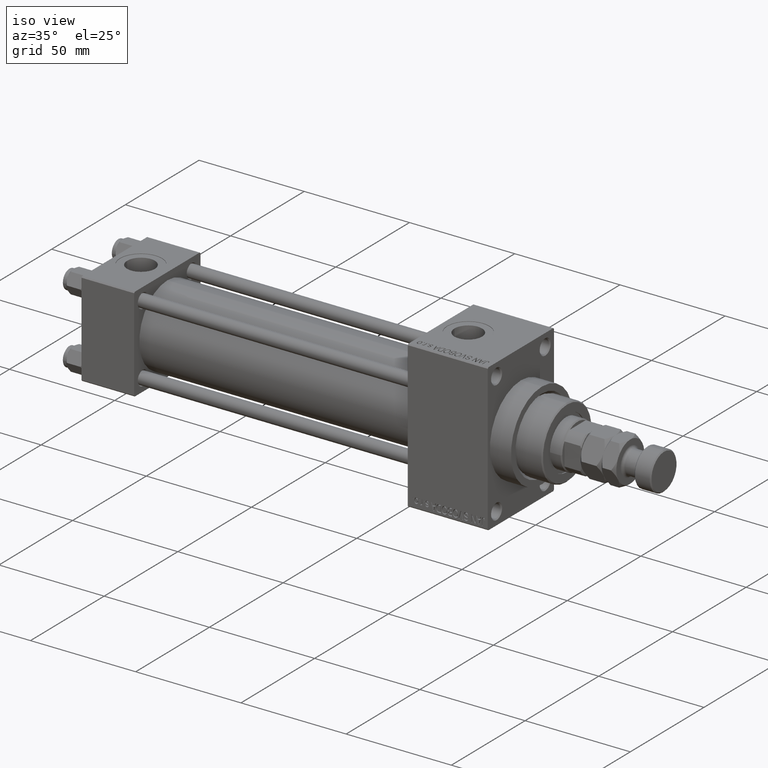
[diagram: clean part render]
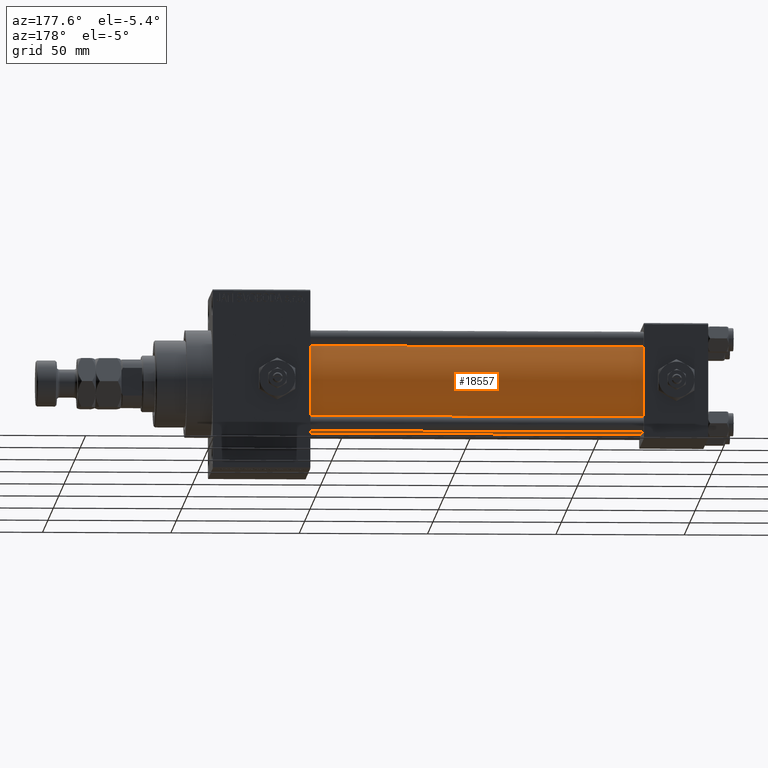
[diagram: tour spotlight — one face highlighted and labeled with its STEP entity id]
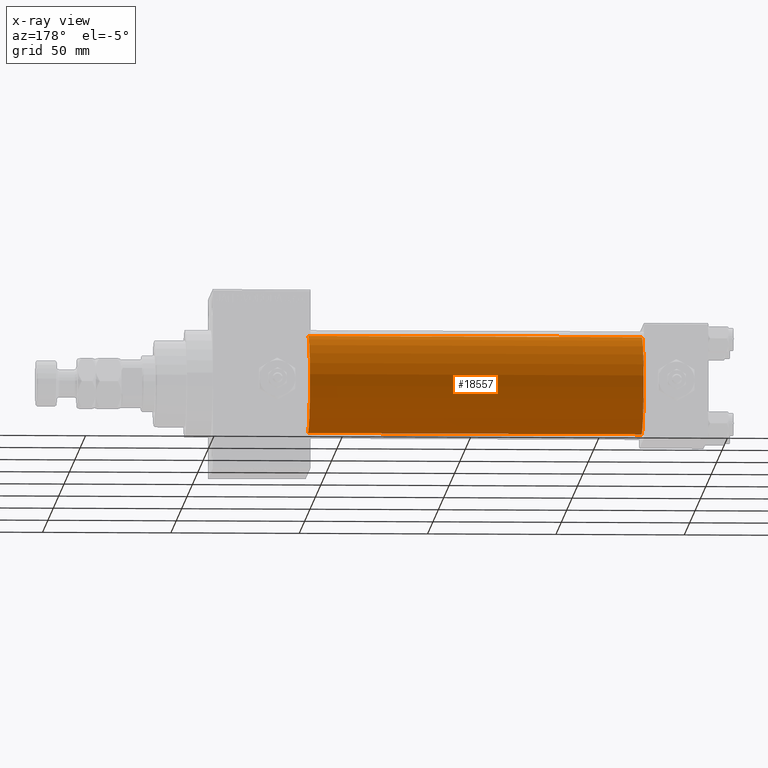
[diagram: x-ray of the same camera — body ghosted, this tour face saturated]
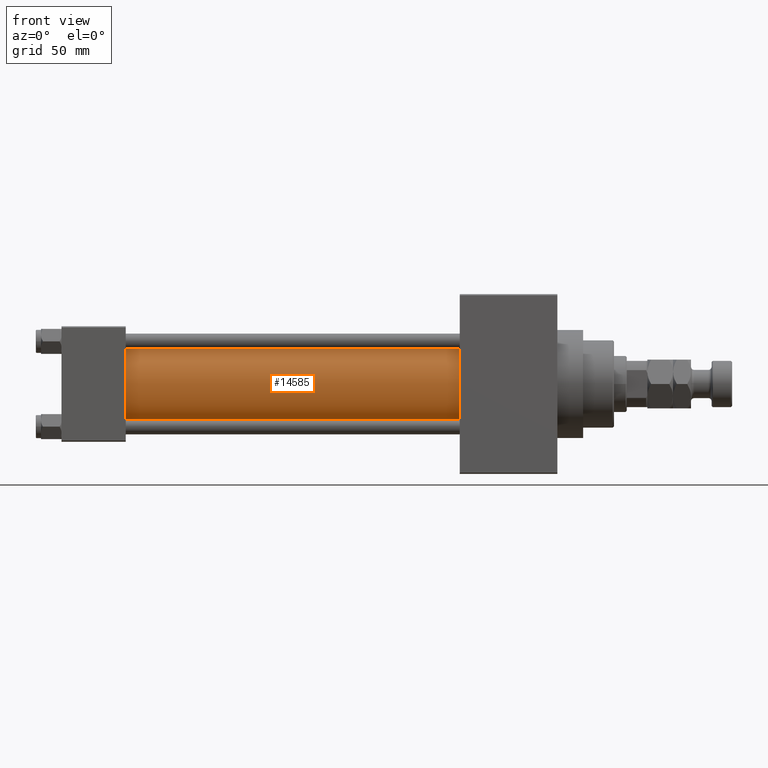
[diagram: tour spotlight — one face highlighted and labeled with its STEP entity id]
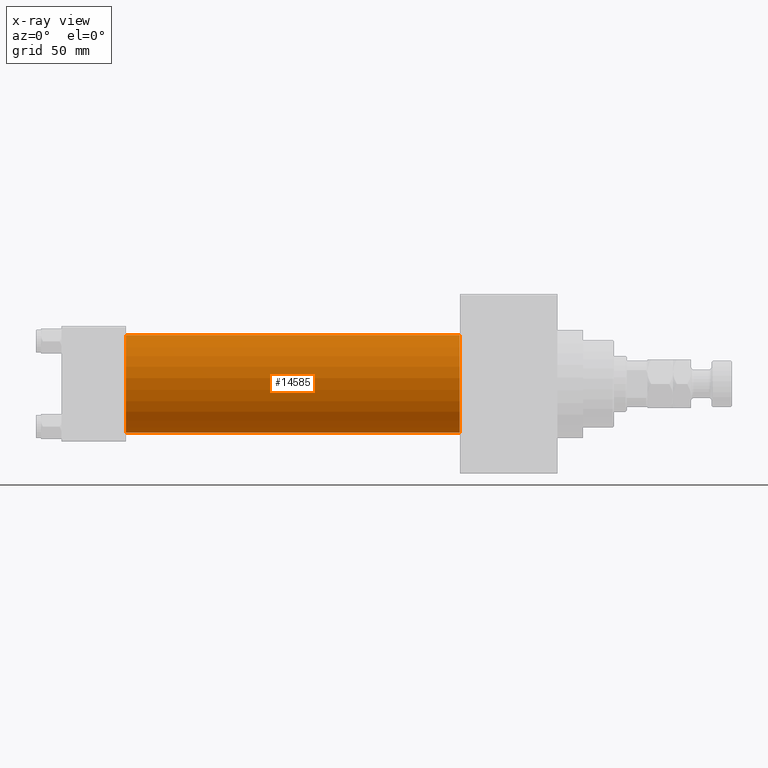
[diagram: x-ray of the same camera — body ghosted, this tour face saturated]
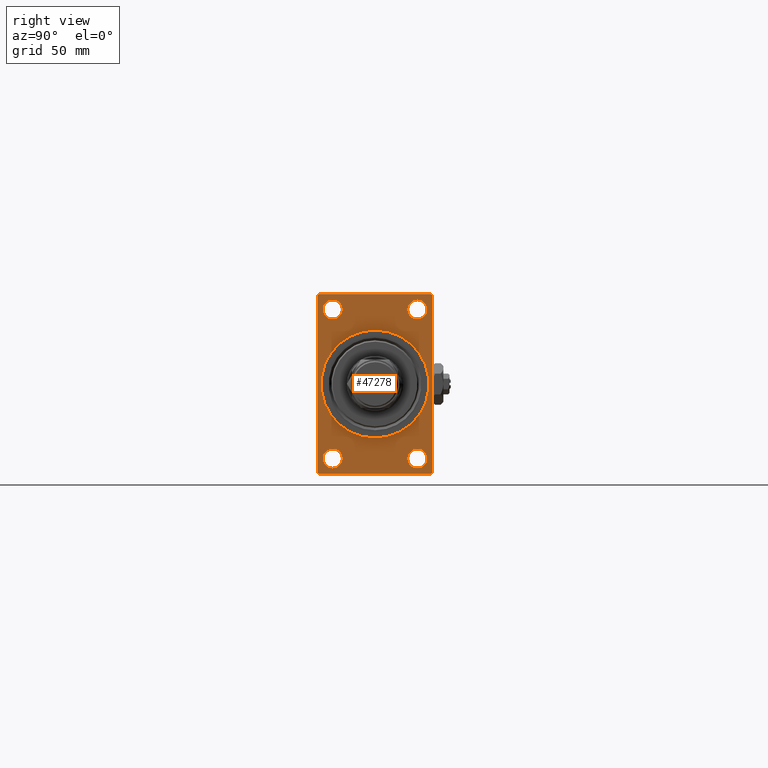
[diagram: tour spotlight — one face highlighted and labeled with its STEP entity id]
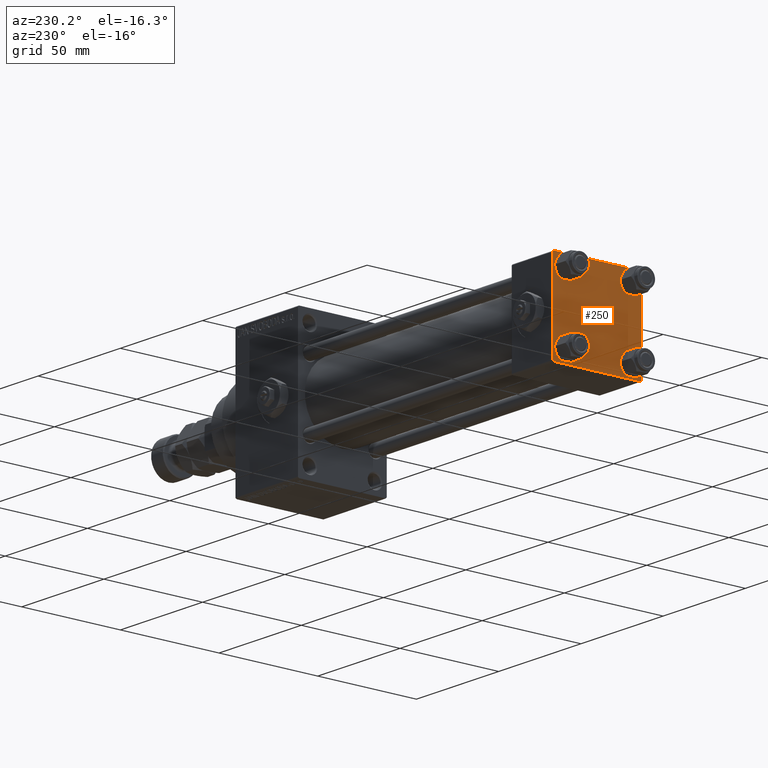
[diagram: tour spotlight — one face highlighted and labeled with its STEP entity id]
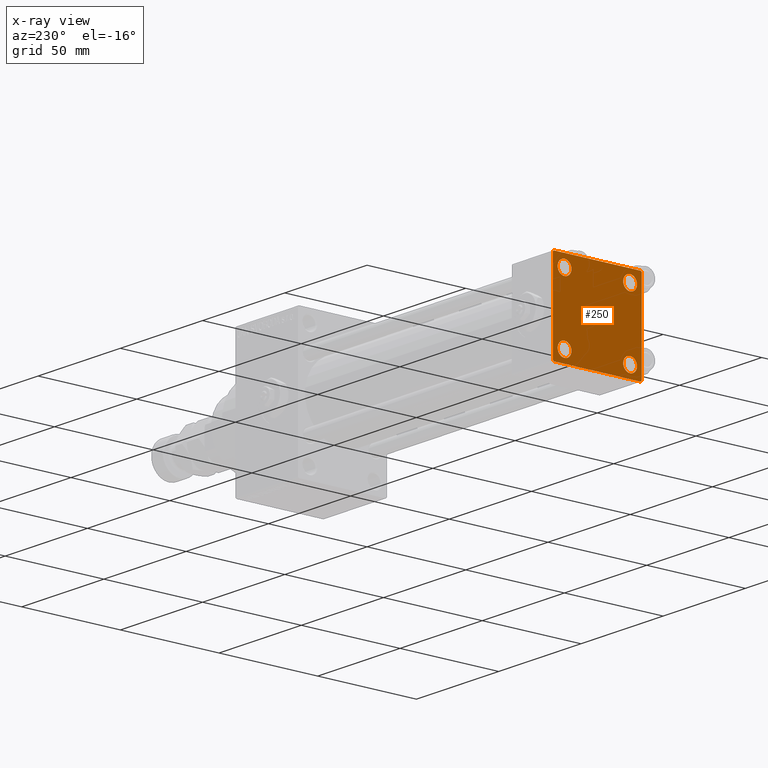
[diagram: x-ray of the same camera — body ghosted, this tour face saturated]
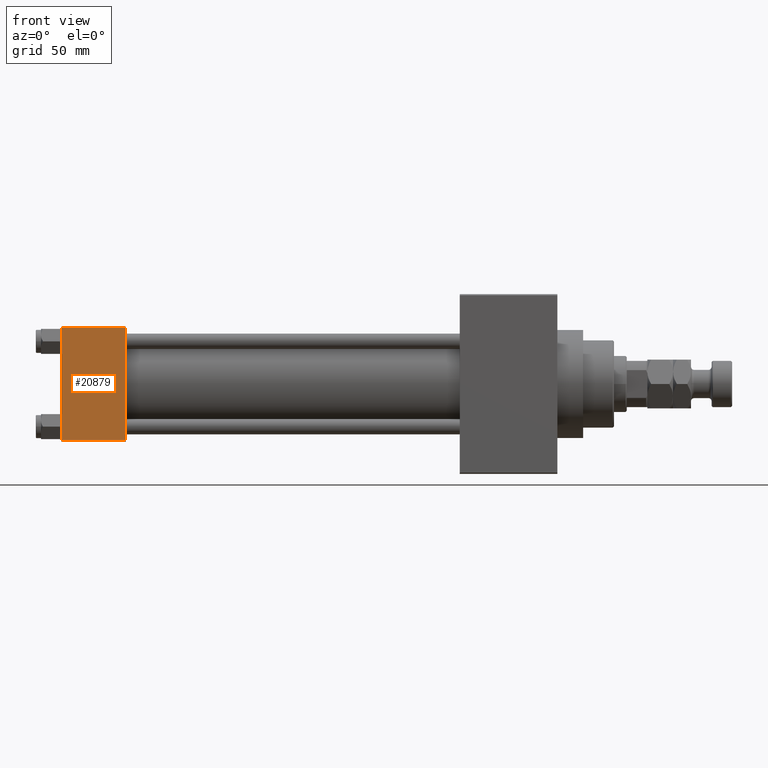
[diagram: tour spotlight — one face highlighted and labeled with its STEP entity id]
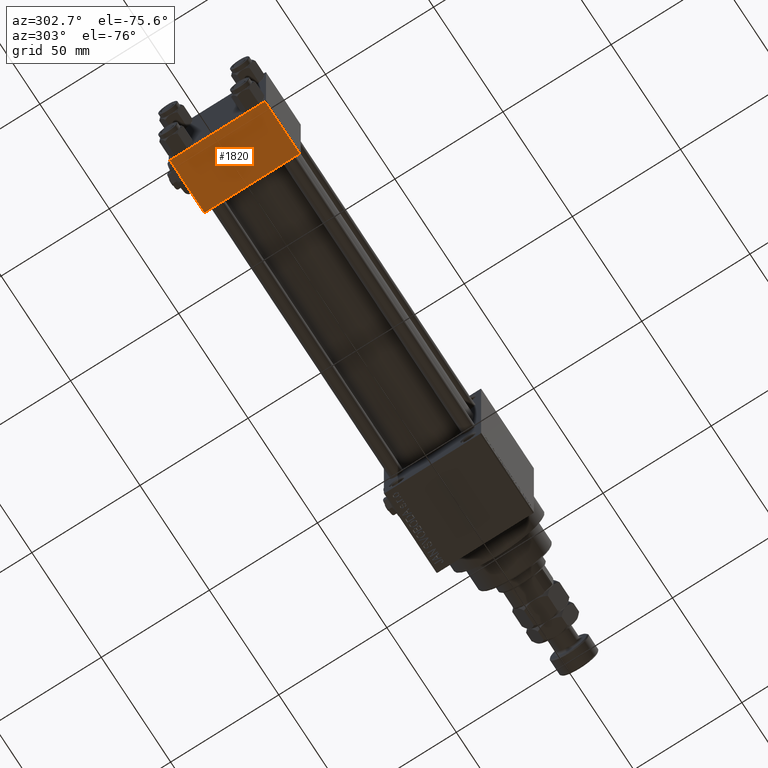
[diagram: tour spotlight — one face highlighted and labeled with its STEP entity id]
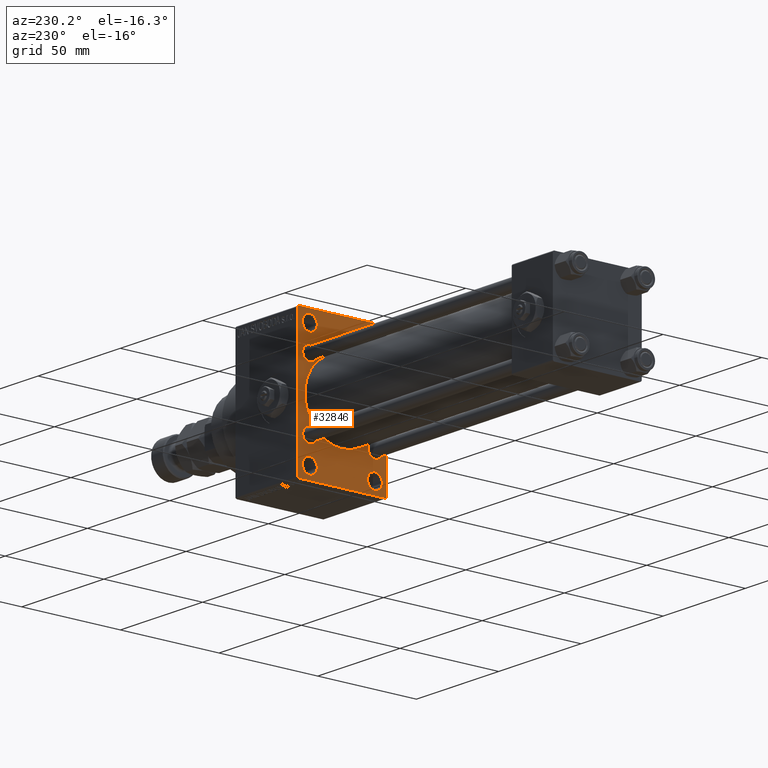
[diagram: tour spotlight — one face highlighted and labeled with its STEP entity id]
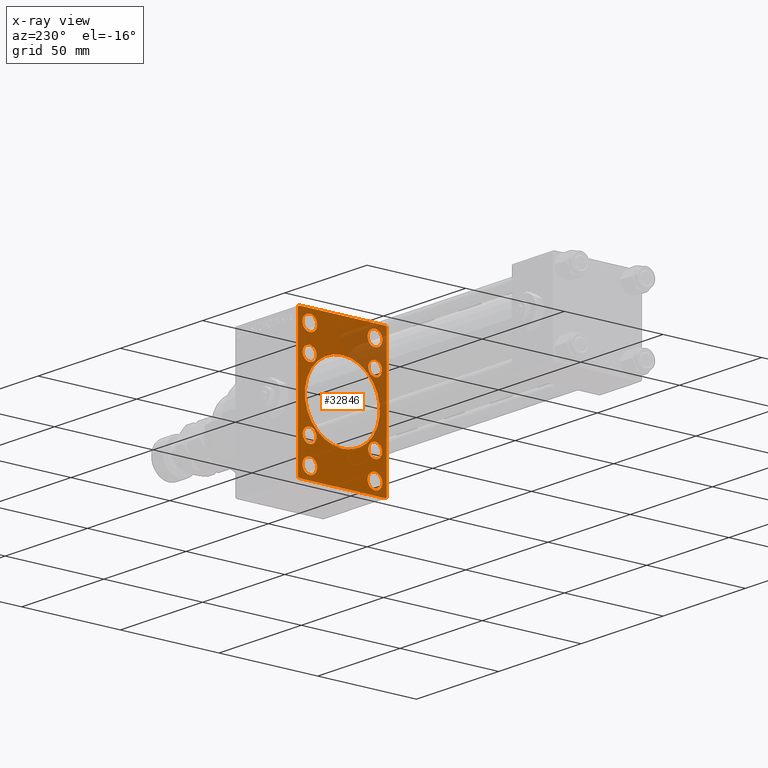
[diagram: x-ray of the same camera — body ghosted, this tour face saturated]
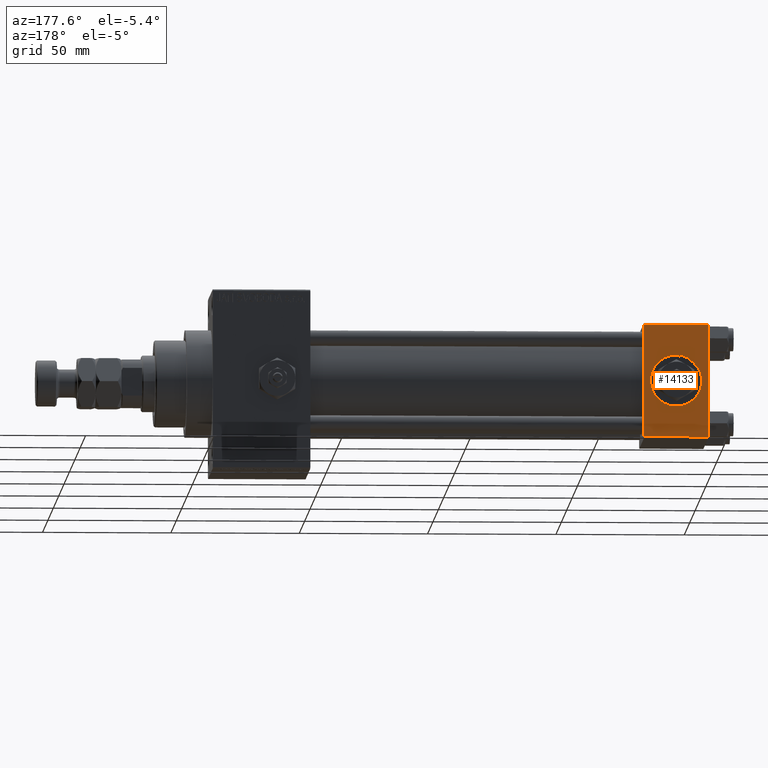
[diagram: tour spotlight — one face highlighted and labeled with its STEP entity id]
A machine part: a face-by-face anatomy tour. The part has 1255 B-rep faces; the first image is the clean iso view, then the 8 largest visible faces are spotlighted one at a time (largest first), each with its STEP entity span.

Face 1 — auxiliary view, entity #18557. An x-ray twin of the same camera follows (body ghosted, this face saturated) — the face is partly hidden behind the body. In plain terms, the highlighted cylindrical surface (partial cylindrical patch) has radius 19 mm, axis along (-1, -0, -0).
Definition (entity closure, byte-faithful):
#63 = DIRECTION ( 'NONE',  ( -1.000000000000000000, -0.000000000000000000, -0.000000000000000000 ) ) ;
#2943 = AXIS2_PLACEMENT_3D ( 'NONE', #3964, #43767, #24498 ) ;
#3330 = DIRECTION ( 'NONE',  ( -1.000000000000000000, -0.000000000000000000, -0.000000000000000000 ) ) ;
#3964 = CARTESIAN_POINT ( 'NONE',  ( 24.99999999999999289, -2.602085213965210642E-15, 0.000000000000000000 ) ) ;
#7514 = CARTESIAN_POINT ( 'NONE',  ( 24.99999999999999289, -2.602085213965210642E-15, 19.00000000000000000 ) ) ;
#7829 = CYLINDRICAL_SURFACE ( 'NONE', #31213, 19.00000000000000000 ) ;
#7936 = CARTESIAN_POINT ( 'NONE',  ( 155.0000000000000000, -2.602085213965210642E-15, 19.00000000000000000 ) ) ;
#11118 = CARTESIAN_POINT ( 'NONE',  ( 155.0000000000000000, -2.752562955852396712E-16, -19.00000000000000000 ) ) ;
#12083 = CARTESIAN_POINT ( 'NONE',  ( 155.0000000000000000, -2.602085213965210642E-15, 0.000000000000000000 ) ) ;
#13071 = CIRCLE ( 'NONE', #20431, 19.00000000000000000 ) ;
#14171 = CARTESIAN_POINT ( 'NONE',  ( 24.99999999999999289, -2.752562955852396712E-16, -19.00000000000000000 ) ) ;
#15142 = LINE ( 'NONE', #7936, #34023 ) ;
#15486 = VERTEX_POINT ( 'NONE', #14171 ) ;
#15650 = VERTEX_POINT ( 'NONE', #49054 ) ;
#15732 = LINE ( 'NONE', #11118, #40062 ) ;
#16571 = ORIENTED_EDGE ( 'NONE', *, *, #42589, .T. ) ;
#18557 = ADVANCED_FACE ( 'NONE', ( #50741 ), #7829, .T. ) ;
#20431 = AXIS2_PLACEMENT_3D ( 'NONE', #12083, #43436, #28029 ) ;
#20970 = CIRCLE ( 'NONE', #2943, 19.00000000000000000 ) ;
#23261 = ORIENTED_EDGE ( 'NONE', *, *, #25704, .F. ) ;
#23495 = CARTESIAN_POINT ( 'NONE',  ( 155.0000000000000000, -2.602085213965210642E-15, 0.000000000000000000 ) ) ;
#24498 = DIRECTION ( 'NONE',  ( 0.000000000000000000, 0.000000000000000000, 1.000000000000000000 ) ) ;
#25704 = EDGE_CURVE ( 'NONE', #37516, #47097, #15142, .T. ) ;
#26852 = DIRECTION ( 'NONE',  ( 0.000000000000000000, 0.000000000000000000, 1.000000000000000000 ) ) ;
#28029 = DIRECTION ( 'NONE',  ( 0.000000000000000000, 0.000000000000000000, -1.000000000000000000 ) ) ;
#30568 = ORIENTED_EDGE ( 'NONE', *, *, #32633, .T. ) ;
#31213 = AXIS2_PLACEMENT_3D ( 'NONE', #23495, #31474, #26852 ) ;
#31474 = DIRECTION ( 'NONE',  ( -1.000000000000000000, -0.000000000000000000, -0.000000000000000000 ) ) ;
#32633 = EDGE_CURVE ( 'NONE', #15486, #47097, #20970, .T. ) ;
#34023 = VECTOR ( 'NONE', #3330, 1000.000000000000000 ) ;
#36076 = ORIENTED_EDGE ( 'NONE', *, *, #47695, .F. ) ;
#37516 = VERTEX_POINT ( 'NONE', #43639 ) ;
#40062 = VECTOR ( 'NONE', #63, 1000.000000000000000 ) ;
#42589 = EDGE_CURVE ( 'NONE', #15650, #15486, #15732, .T. ) ;
#43436 = DIRECTION ( 'NONE',  ( 1.000000000000000000, 0.000000000000000000, 0.000000000000000000 ) ) ;
#43639 = CARTESIAN_POINT ( 'NONE',  ( 155.0000000000000000, -2.602085213965210642E-15, 19.00000000000000000 ) ) ;
#43767 = DIRECTION ( 'NONE',  ( 1.000000000000000000, -0.000000000000000000, 0.000000000000000000 ) ) ;
#45718 = EDGE_LOOP ( 'NONE', ( #36076, #16571, #30568, #23261 ) ) ;
#47097 = VERTEX_POINT ( 'NONE', #7514 ) ;
#47695 = EDGE_CURVE ( 'NONE', #15650, #37516, #13071, .T. ) ;
#49054 = CARTESIAN_POINT ( 'NONE',  ( 155.0000000000000000, -2.752562955852396712E-16, -19.00000000000000000 ) ) ;
#50741 = FACE_OUTER_BOUND ( 'NONE', #45718, .T. ) ;

Face 2 — front view, entity #14585. An x-ray twin of the same camera follows (body ghosted, this face saturated) — the face is partly hidden behind the body. In plain terms, the highlighted cylindrical surface (partial cylindrical patch) has radius 19 mm, axis along (-1, -0, -0).
Definition (entity closure, byte-faithful):
#63 = DIRECTION ( 'NONE',  ( -1.000000000000000000, -0.000000000000000000, -0.000000000000000000 ) ) ;
#352 = CIRCLE ( 'NONE', #30751, 19.00000000000000000 ) ;
#1047 = ORIENTED_EDGE ( 'NONE', *, *, #33653, .F. ) ;
#3330 = DIRECTION ( 'NONE',  ( -1.000000000000000000, -0.000000000000000000, -0.000000000000000000 ) ) ;
#5181 = DIRECTION ( 'NONE',  ( -1.000000000000000000, -0.000000000000000000, -0.000000000000000000 ) ) ;
#5369 = CARTESIAN_POINT ( 'NONE',  ( 155.0000000000000000, -2.602085213965210642E-15, 0.000000000000000000 ) ) ;
#7514 = CARTESIAN_POINT ( 'NONE',  ( 24.99999999999999289, -2.602085213965210642E-15, 19.00000000000000000 ) ) ;
#7934 = DIRECTION ( 'NONE',  ( 1.000000000000000000, -0.000000000000000000, 0.000000000000000000 ) ) ;
#7936 = CARTESIAN_POINT ( 'NONE',  ( 155.0000000000000000, -2.602085213965210642E-15, 19.00000000000000000 ) ) ;
#11118 = CARTESIAN_POINT ( 'NONE',  ( 155.0000000000000000, -2.752562955852396712E-16, -19.00000000000000000 ) ) ;
#12118 = DIRECTION ( 'NONE',  ( 0.000000000000000000, 0.000000000000000000, 1.000000000000000000 ) ) ;
#13369 = ORIENTED_EDGE ( 'NONE', *, *, #42589, .F. ) ;
#14171 = CARTESIAN_POINT ( 'NONE',  ( 24.99999999999999289, -2.752562955852396712E-16, -19.00000000000000000 ) ) ;
#14585 = ADVANCED_FACE ( 'NONE', ( #39621 ), #24711, .T. ) ;
#15142 = LINE ( 'NONE', #7936, #34023 ) ;
#15486 = VERTEX_POINT ( 'NONE', #14171 ) ;
#15650 = VERTEX_POINT ( 'NONE', #49054 ) ;
#15732 = LINE ( 'NONE', #11118, #40062 ) ;
#17430 = DIRECTION ( 'NONE',  ( 0.000000000000000000, 0.000000000000000000, -1.000000000000000000 ) ) ;
#19410 = EDGE_LOOP ( 'NONE', ( #13369, #1047, #32225, #32790 ) ) ;
#19556 = AXIS2_PLACEMENT_3D ( 'NONE', #47582, #5181, #12118 ) ;
#24711 = CYLINDRICAL_SURFACE ( 'NONE', #19556, 19.00000000000000000 ) ;
#25704 = EDGE_CURVE ( 'NONE', #37516, #47097, #15142, .T. ) ;
#30751 = AXIS2_PLACEMENT_3D ( 'NONE', #5369, #36980, #17430 ) ;
#32225 = ORIENTED_EDGE ( 'NONE', *, *, #25704, .T. ) ;
#32790 = ORIENTED_EDGE ( 'NONE', *, *, #45321, .T. ) ;
#33653 = EDGE_CURVE ( 'NONE', #37516, #15650, #352, .T. ) ;
#34023 = VECTOR ( 'NONE', #3330, 1000.000000000000000 ) ;
#36980 = DIRECTION ( 'NONE',  ( 1.000000000000000000, 0.000000000000000000, 0.000000000000000000 ) ) ;
#37516 = VERTEX_POINT ( 'NONE', #43639 ) ;
#39273 = DIRECTION ( 'NONE',  ( 0.000000000000000000, 0.000000000000000000, 1.000000000000000000 ) ) ;
#39621 = FACE_OUTER_BOUND ( 'NONE', #19410, .T. ) ;
#40062 = VECTOR ( 'NONE', #63, 1000.000000000000000 ) ;
#42589 = EDGE_CURVE ( 'NONE', #15650, #15486, #15732, .T. ) ;
#43127 = CARTESIAN_POINT ( 'NONE',  ( 24.99999999999999289, -2.602085213965210642E-15, 0.000000000000000000 ) ) ;
#43639 = CARTESIAN_POINT ( 'NONE',  ( 155.0000000000000000, -2.602085213965210642E-15, 19.00000000000000000 ) ) ;
#45321 = EDGE_CURVE ( 'NONE', #47097, #15486, #47470, .T. ) ;
#45825 = AXIS2_PLACEMENT_3D ( 'NONE', #43127, #7934, #39273 ) ;
#47097 = VERTEX_POINT ( 'NONE', #7514 ) ;
#47470 = CIRCLE ( 'NONE', #45825, 19.00000000000000000 ) ;
#47582 = CARTESIAN_POINT ( 'NONE',  ( 155.0000000000000000, -2.602085213965210642E-15, 0.000000000000000000 ) ) ;
#49054 = CARTESIAN_POINT ( 'NONE',  ( 155.0000000000000000, -2.752562955852396712E-16, -19.00000000000000000 ) ) ;

Face 3 — right view, entity #47278. In plain terms, the highlighted planar face has unit normal (-1, 0, 0).
Definition (entity closure, byte-faithful):
#327 = VERTEX_POINT ( 'NONE', #17705 ) ;
#670 = ORIENTED_EDGE ( 'NONE', *, *, #49127, .T. ) ;
#842 = EDGE_CURVE ( 'NONE', #34990, #1849, #35548, .T. ) ;
#1090 = AXIS2_PLACEMENT_3D ( 'NONE', #20819, #36510, #25446 ) ;
#1294 = ORIENTED_EDGE ( 'NONE', *, *, #27337, .T. ) ;
#1849 = VERTEX_POINT ( 'NONE', #27837 ) ;
#1852 = CARTESIAN_POINT ( 'NONE',  ( 193.0000000000000000, 22.49999999999999645, -34.50000000000000000 ) ) ;
#1861 = EDGE_CURVE ( 'NONE', #41234, #25849, #19868, .T. ) ;
#2082 = CIRCLE ( 'NONE', #8639, 3.750000000000090150 ) ;
#2784 = CARTESIAN_POINT ( 'NONE',  ( 193.0000000000000000, 0.000000000000000000, 0.000000000000000000 ) ) ;
#3291 = FACE_BOUND ( 'NONE', #15952, .T. ) ;
#3780 = CARTESIAN_POINT ( 'NONE',  ( 193.0000000000000000, 16.50000000000000000, -28.99999999999999289 ) ) ;
#4135 = EDGE_LOOP ( 'NONE', ( #1294, #44952 ) ) ;
#4240 = AXIS2_PLACEMENT_3D ( 'NONE', #15868, #31560, #12009 ) ;
#4587 = VERTEX_POINT ( 'NONE', #29772 ) ;
#4996 = CARTESIAN_POINT ( 'NONE',  ( 193.0000000000000000, 0.000000000000000000, 21.00000000000000000 ) ) ;
#6364 = DIRECTION ( 'NONE',  ( -1.000000000000000000, -0.000000000000000000, -0.000000000000000000 ) ) ;
#6532 = ORIENTED_EDGE ( 'NONE', *, *, #29957, .T. ) ;
#6844 = CARTESIAN_POINT ( 'NONE',  ( 193.0000000000000000, 2.571758278209441661E-15, -21.00000000000000000 ) ) ;
#7185 = DIRECTION ( 'NONE',  ( -1.000000000000000000, -0.000000000000000000, -0.000000000000000000 ) ) ;
#7234 = DIRECTION ( 'NONE',  ( 0.000000000000000000, -1.000000000000000000, 0.000000000000000000 ) ) ;
#7735 = ORIENTED_EDGE ( 'NONE', *, *, #842, .T. ) ;
#7738 = AXIS2_PLACEMENT_3D ( 'NONE', #34123, #6364, #21524 ) ;
#7991 = DIRECTION ( 'NONE',  ( 1.000000000000000000, 0.000000000000000000, 0.000000000000000000 ) ) ;
#8050 = CARTESIAN_POINT ( 'NONE',  ( 193.0000000000000000, -22.50000000000000355, 34.50000000000000000 ) ) ;
#8297 = CARTESIAN_POINT ( 'NONE',  ( 193.0000000000000000, 16.50000000000000000, 29.00000000000000355 ) ) ;
#8334 = CARTESIAN_POINT ( 'NONE',  ( 193.0000000000000000, -16.50000000000000000, 29.00000000000000711 ) ) ;
#8639 = AXIS2_PLACEMENT_3D ( 'NONE', #32501, #48149, #13470 ) ;
#9442 = CARTESIAN_POINT ( 'NONE',  ( 193.0000000000000000, -22.50000000000000355, -34.50000000000000000 ) ) ;
#9465 = ORIENTED_EDGE ( 'NONE', *, *, #11893, .F. ) ;
#9895 = LINE ( 'NONE', #40989, #34127 ) ;
#9953 = CIRCLE ( 'NONE', #4240, 21.00000000000000000 ) ;
#10173 = CARTESIAN_POINT ( 'NONE',  ( 193.0000000000000000, -16.50000000000000000, 29.00000000000000711 ) ) ;
#10447 = CARTESIAN_POINT ( 'NONE',  ( 193.0000000000000000, -21.99999999999998934, -35.00000000000000000 ) ) ;
#11275 = ORIENTED_EDGE ( 'NONE', *, *, #25568, .T. ) ;
#11488 = FACE_OUTER_BOUND ( 'NONE', #45347, .T. ) ;
#11677 = DIRECTION ( 'NONE',  ( -1.000000000000000000, -0.000000000000000000, -0.000000000000000000 ) ) ;
#11893 = EDGE_CURVE ( 'NONE', #18294, #21931, #36544, .T. ) ;
#12009 = DIRECTION ( 'NONE',  ( 0.000000000000000000, 0.000000000000000000, -1.000000000000000000 ) ) ;
#12233 = DIRECTION ( 'NONE',  ( -1.000000000000000000, -0.000000000000000000, -0.000000000000000000 ) ) ;
#12628 = VECTOR ( 'NONE', #20360, 1000.000000000000114 ) ;
#12637 = DIRECTION ( 'NONE',  ( -1.000000000000000000, -0.000000000000000000, -0.000000000000000000 ) ) ;
#13470 = DIRECTION ( 'NONE',  ( 0.000000000000000000, 0.000000000000000000, 1.000000000000000000 ) ) ;
#13494 = CIRCLE ( 'NONE', #46319, 3.750000000000090150 ) ;
#13795 = ORIENTED_EDGE ( 'NONE', *, *, #26831, .T. ) ;
#14379 = DIRECTION ( 'NONE',  ( 0.000000000000000000, 0.000000000000000000, 1.000000000000000000 ) ) ;
#14990 = CARTESIAN_POINT ( 'NONE',  ( 193.0000000000000000, 16.50000000000000000, -32.75000000000008527 ) ) ;
#15084 = ORIENTED_EDGE ( 'NONE', *, *, #32290, .T. ) ;
#15101 = FACE_BOUND ( 'NONE', #4135, .T. ) ;
#15528 = CARTESIAN_POINT ( 'NONE',  ( 193.0000000000000000, -16.50000000000000000, -32.75000000000008527 ) ) ;
#15785 = DIRECTION ( 'NONE',  ( 0.000000000000000000, 0.000000000000000000, 1.000000000000000000 ) ) ;
#15868 = CARTESIAN_POINT ( 'NONE',  ( 193.0000000000000000, 0.000000000000000000, 0.000000000000000000 ) ) ;
#15881 = CARTESIAN_POINT ( 'NONE',  ( 193.0000000000000000, -16.50000000000000000, 25.24999999999992539 ) ) ;
#15952 = EDGE_LOOP ( 'NONE', ( #44397, #20482 ) ) ;
#17008 = CARTESIAN_POINT ( 'NONE',  ( 193.0000000000000000, 22.49999999999999645, -35.00000000000000000 ) ) ;
#17705 = CARTESIAN_POINT ( 'NONE',  ( 193.0000000000000000, 21.99999999999999645, 35.00000000000000000 ) ) ;
#18151 = EDGE_CURVE ( 'NONE', #24645, #35286, #23823, .T. ) ;
#18294 = VERTEX_POINT ( 'NONE', #25073 ) ;
#18320 = LINE ( 'NONE', #49693, #49247 ) ;
#18640 = EDGE_CURVE ( 'NONE', #23710, #36566, #42677, .T. ) ;
#19076 = AXIS2_PLACEMENT_3D ( 'NONE', #8297, #12637, #23960 ) ;
#19868 = LINE ( 'NONE', #32210, #28266 ) ;
#20360 = DIRECTION ( 'NONE',  ( -0.000000000000000000, -0.7071067811865474617, -0.7071067811865474617 ) ) ;
#20482 = ORIENTED_EDGE ( 'NONE', *, *, #20898, .F. ) ;
#20800 = ORIENTED_EDGE ( 'NONE', *, *, #18640, .T. ) ;
#20819 = CARTESIAN_POINT ( 'NONE',  ( 193.0000000000000000, 16.50000000000000000, -28.99999999999999289 ) ) ;
#20898 = EDGE_CURVE ( 'NONE', #35731, #22043, #9953, .T. ) ;
#21108 = CARTESIAN_POINT ( 'NONE',  ( 193.0000000000000000, -16.50000000000000000, 32.75000000000009237 ) ) ;
#21524 = DIRECTION ( 'NONE',  ( 0.000000000000000000, 0.000000000000000000, 1.000000000000000000 ) ) ;
#21594 = VECTOR ( 'NONE', #22387, 1000.000000000000114 ) ;
#21703 = CARTESIAN_POINT ( 'NONE',  ( 193.0000000000000000, -22.00000000000000355, -35.00000000000000000 ) ) ;
#21829 = CARTESIAN_POINT ( 'NONE',  ( 193.0000000000000000, -16.50000000000000000, -28.99999999999999289 ) ) ;
#21837 = EDGE_CURVE ( 'NONE', #22043, #35731, #37107, .T. ) ;
#21931 = VERTEX_POINT ( 'NONE', #10447 ) ;
#21934 = DIRECTION ( 'NONE',  ( 0.000000000000000000, 0.000000000000000000, -1.000000000000000000 ) ) ;
#22043 = VERTEX_POINT ( 'NONE', #4996 ) ;
#22214 = LINE ( 'NONE', #21703, #45466 ) ;
#22387 = DIRECTION ( 'NONE',  ( -0.000000000000000000, 0.7071067811865474617, 0.7071067811865474617 ) ) ;
#23710 = VERTEX_POINT ( 'NONE', #21108 ) ;
#23823 = CIRCLE ( 'NONE', #40205, 3.750000000000090150 ) ;
#23960 = DIRECTION ( 'NONE',  ( 0.000000000000000000, 0.000000000000000000, 1.000000000000000000 ) ) ;
#24445 = EDGE_CURVE ( 'NONE', #34174, #4587, #40415, .T. ) ;
#24486 = DIRECTION ( 'NONE',  ( 0.000000000000000000, 0.000000000000000000, -1.000000000000000000 ) ) ;
#24645 = VERTEX_POINT ( 'NONE', #29082 ) ;
#25073 = CARTESIAN_POINT ( 'NONE',  ( 193.0000000000000000, 21.99999999999999645, -35.00000000000000000 ) ) ;
#25446 = DIRECTION ( 'NONE',  ( 0.000000000000000000, 0.000000000000000000, 1.000000000000000000 ) ) ;
#25457 = CARTESIAN_POINT ( 'NONE',  ( 193.0000000000000000, 16.50000000000000000, 25.24999999999991829 ) ) ;
#25568 = EDGE_CURVE ( 'NONE', #39961, #50179, #13494, .T. ) ;
#25849 = VERTEX_POINT ( 'NONE', #43506 ) ;
#26831 = EDGE_CURVE ( 'NONE', #41234, #327, #34377, .T. ) ;
#27089 = AXIS2_PLACEMENT_3D ( 'NONE', #8334, #11677, #15785 ) ;
#27337 = EDGE_CURVE ( 'NONE', #35286, #24645, #42945, .T. ) ;
#27778 = EDGE_CURVE ( 'NONE', #18294, #25849, #46027, .T. ) ;
#27837 = CARTESIAN_POINT ( 'NONE',  ( 193.0000000000000000, -22.50000000000000355, 34.50000000000000000 ) ) ;
#27923 = DIRECTION ( 'NONE',  ( 0.000000000000000000, 0.000000000000000000, 1.000000000000000000 ) ) ;
#28266 = VECTOR ( 'NONE', #24486, 1000.000000000000000 ) ;
#28405 = EDGE_LOOP ( 'NONE', ( #11275, #32537 ) ) ;
#28967 = VECTOR ( 'NONE', #50041, 1000.000000000000114 ) ;
#29082 = CARTESIAN_POINT ( 'NONE',  ( 193.0000000000000000, 16.50000000000000000, -25.24999999999990763 ) ) ;
#29150 = CIRCLE ( 'NONE', #45572, 3.750000000000083045 ) ;
#29179 = DIRECTION ( 'NONE',  ( 0.000000000000000000, -1.000000000000000000, 0.000000000000000000 ) ) ;
#29277 = EDGE_CURVE ( 'NONE', #36707, #21931, #22214, .T. ) ;
#29688 = AXIS2_PLACEMENT_3D ( 'NONE', #32141, #7991, #42929 ) ;
#29751 = CARTESIAN_POINT ( 'NONE',  ( 193.0000000000000000, 21.99999999999999645, 35.00000000000000000 ) ) ;
#29772 = CARTESIAN_POINT ( 'NONE',  ( 193.0000000000000000, 16.50000000000000000, 32.75000000000009237 ) ) ;
#29957 = EDGE_CURVE ( 'NONE', #4587, #34174, #49598, .T. ) ;
#29970 = DIRECTION ( 'NONE',  ( -1.000000000000000000, -0.000000000000000000, -0.000000000000000000 ) ) ;
#30280 = DIRECTION ( 'NONE',  ( -1.000000000000000000, 0.000000000000000000, -0.000000000000000000 ) ) ;
#30857 = ORIENTED_EDGE ( 'NONE', *, *, #1861, .F. ) ;
#31560 = DIRECTION ( 'NONE',  ( 1.000000000000000000, 0.000000000000000000, 0.000000000000000000 ) ) ;
#32141 = CARTESIAN_POINT ( 'NONE',  ( 193.0000000000000000, 0.000000000000000000, 0.000000000000000000 ) ) ;
#32210 = CARTESIAN_POINT ( 'NONE',  ( 193.0000000000000000, 22.49999999999999645, 35.00000000000000000 ) ) ;
#32290 = EDGE_CURVE ( 'NONE', #327, #34990, #9895, .T. ) ;
#32501 = CARTESIAN_POINT ( 'NONE',  ( 193.0000000000000000, -16.50000000000000000, -28.99999999999999289 ) ) ;
#32537 = ORIENTED_EDGE ( 'NONE', *, *, #35995, .T. ) ;
#33604 = AXIS2_PLACEMENT_3D ( 'NONE', #2784, #30280, #38229 ) ;
#34083 = CARTESIAN_POINT ( 'NONE',  ( 193.0000000000000000, -21.99999999999998934, 35.00000000000000000 ) ) ;
#34123 = CARTESIAN_POINT ( 'NONE',  ( 193.0000000000000000, 16.50000000000000000, 29.00000000000000355 ) ) ;
#34127 = VECTOR ( 'NONE', #29179, 1000.000000000000000 ) ;
#34174 = VERTEX_POINT ( 'NONE', #25457 ) ;
#34377 = LINE ( 'NONE', #29751, #28967 ) ;
#34388 = FACE_BOUND ( 'NONE', #41619, .T. ) ;
#34990 = VERTEX_POINT ( 'NONE', #34083 ) ;
#35286 = VERTEX_POINT ( 'NONE', #14990 ) ;
#35548 = LINE ( 'NONE', #8050, #12628 ) ;
#35731 = VERTEX_POINT ( 'NONE', #6844 ) ;
#35767 = EDGE_CURVE ( 'NONE', #36566, #23710, #29150, .T. ) ;
#35995 = EDGE_CURVE ( 'NONE', #50179, #39961, #2082, .T. ) ;
#36510 = DIRECTION ( 'NONE',  ( -1.000000000000000000, -0.000000000000000000, -0.000000000000000000 ) ) ;
#36544 = LINE ( 'NONE', #17008, #49987 ) ;
#36566 = VERTEX_POINT ( 'NONE', #15881 ) ;
#36707 = VERTEX_POINT ( 'NONE', #9442 ) ;
#37107 = CIRCLE ( 'NONE', #29688, 21.00000000000000000 ) ;
#37691 = ORIENTED_EDGE ( 'NONE', *, *, #29277, .T. ) ;
#38229 = DIRECTION ( 'NONE',  ( -0.000000000000000000, 0.000000000000000000, 1.000000000000000000 ) ) ;
#38476 = FACE_BOUND ( 'NONE', #39255, .T. ) ;
#38725 = PLANE ( 'NONE',  #33604 ) ;
#39255 = EDGE_LOOP ( 'NONE', ( #49134, #20800 ) ) ;
#39961 = VERTEX_POINT ( 'NONE', #15528 ) ;
#40205 = AXIS2_PLACEMENT_3D ( 'NONE', #3780, #12233, #27923 ) ;
#40415 = CIRCLE ( 'NONE', #19076, 3.750000000000086597 ) ;
#40875 = CARTESIAN_POINT ( 'NONE',  ( 193.0000000000000000, 22.49999999999999645, 34.50000000000000000 ) ) ;
#40989 = CARTESIAN_POINT ( 'NONE',  ( 193.0000000000000000, 22.49999999999999645, 35.00000000000000000 ) ) ;
#41234 = VERTEX_POINT ( 'NONE', #40875 ) ;
#41619 = EDGE_LOOP ( 'NONE', ( #44916, #6532 ) ) ;
#42677 = CIRCLE ( 'NONE', #27089, 3.750000000000083045 ) ;
#42929 = DIRECTION ( 'NONE',  ( 0.000000000000000000, 0.000000000000000000, -1.000000000000000000 ) ) ;
#42945 = CIRCLE ( 'NONE', #1090, 3.750000000000090150 ) ;
#43506 = CARTESIAN_POINT ( 'NONE',  ( 193.0000000000000000, 22.49999999999999645, -34.50000000000000000 ) ) ;
#44397 = ORIENTED_EDGE ( 'NONE', *, *, #21837, .F. ) ;
#44761 = CARTESIAN_POINT ( 'NONE',  ( 193.0000000000000000, -16.50000000000000000, -25.24999999999990763 ) ) ;
#44916 = ORIENTED_EDGE ( 'NONE', *, *, #24445, .T. ) ;
#44952 = ORIENTED_EDGE ( 'NONE', *, *, #18151, .T. ) ;
#45347 = EDGE_LOOP ( 'NONE', ( #670, #37691, #9465, #45531, #30857, #13795, #15084, #7735 ) ) ;
#45466 = VECTOR ( 'NONE', #49198, 1000.000000000000114 ) ;
#45531 = ORIENTED_EDGE ( 'NONE', *, *, #27778, .T. ) ;
#45572 = AXIS2_PLACEMENT_3D ( 'NONE', #10173, #29970, #45627 ) ;
#45627 = DIRECTION ( 'NONE',  ( 0.000000000000000000, 0.000000000000000000, 1.000000000000000000 ) ) ;
#46027 = LINE ( 'NONE', #1852, #21594 ) ;
#46319 = AXIS2_PLACEMENT_3D ( 'NONE', #21829, #7185, #14379 ) ;
#47278 = ADVANCED_FACE ( 'NONE', ( #38476, #49801, #15101, #34388, #3291, #11488 ), #38725, .F. ) ;
#48149 = DIRECTION ( 'NONE',  ( -1.000000000000000000, -0.000000000000000000, -0.000000000000000000 ) ) ;
#49127 = EDGE_CURVE ( 'NONE', #1849, #36707, #18320, .T. ) ;
#49134 = ORIENTED_EDGE ( 'NONE', *, *, #35767, .T. ) ;
#49198 = DIRECTION ( 'NONE',  ( 0.000000000000000000, 0.7071067811865474617, -0.7071067811865474617 ) ) ;
#49247 = VECTOR ( 'NONE', #21934, 1000.000000000000000 ) ;
#49598 = CIRCLE ( 'NONE', #7738, 3.750000000000086597 ) ;
#49693 = CARTESIAN_POINT ( 'NONE',  ( 193.0000000000000000, -22.50000000000000355, 35.00000000000000000 ) ) ;
#49801 = FACE_BOUND ( 'NONE', #28405, .T. ) ;
#49987 = VECTOR ( 'NONE', #7234, 1000.000000000000000 ) ;
#50041 = DIRECTION ( 'NONE',  ( 0.000000000000000000, -0.7071067811865474617, 0.7071067811865474617 ) ) ;
#50179 = VERTEX_POINT ( 'NONE', #44761 ) ;

Face 4 — auxiliary view, entity #250. An x-ray twin of the same camera follows (body ghosted, this face saturated) — the face is partly hidden behind the body. In plain terms, the highlighted planar face has unit normal (-1, 0, 0).
Definition (entity closure, byte-faithful):
#250 = ADVANCED_FACE ( 'NONE', ( #16441, #9498, #32903, #24152, #5652 ), #43677, .T. ) ;
#277 = CARTESIAN_POINT ( 'NONE',  ( 0.000000000000000000, 22.50000000000000000, -22.49999999999999645 ) ) ;
#461 = VECTOR ( 'NONE', #14666, 1000.000000000000000 ) ;
#896 = CIRCLE ( 'NONE', #2562, 3.499999999999996003 ) ;
#1206 = AXIS2_PLACEMENT_3D ( 'NONE', #3195, #2688, #42744 ) ;
#1350 = CARTESIAN_POINT ( 'NONE',  ( 0.000000000000000000, -21.99999999999997868, 22.50000000000000000 ) ) ;
#1394 = ORIENTED_EDGE ( 'NONE', *, *, #15053, .T. ) ;
#1969 = DIRECTION ( 'NONE',  ( 0.000000000000000000, 0.000000000000000000, 1.000000000000000000 ) ) ;
#2514 = DIRECTION ( 'NONE',  ( 0.000000000000000000, 0.000000000000000000, 1.000000000000000000 ) ) ;
#2562 = AXIS2_PLACEMENT_3D ( 'NONE', #45374, #13285, #1969 ) ;
#2688 = DIRECTION ( 'NONE',  ( 1.000000000000000000, -0.000000000000000000, 0.000000000000000000 ) ) ;
#2920 = CARTESIAN_POINT ( 'NONE',  ( 0.000000000000000000, 16.59999999999999787, 16.60000000000000497 ) ) ;
#3195 = CARTESIAN_POINT ( 'NONE',  ( 0.000000000000000000, 16.59999999999999787, 16.60000000000000497 ) ) ;
#3253 = VERTEX_POINT ( 'NONE', #46300 ) ;
#3651 = EDGE_CURVE ( 'NONE', #15665, #7375, #21727, .T. ) ;
#3656 = CIRCLE ( 'NONE', #4457, 3.499999999999996003 ) ;
#3893 = ORIENTED_EDGE ( 'NONE', *, *, #29159, .F. ) ;
#4254 = EDGE_CURVE ( 'NONE', #11921, #3253, #43714, .T. ) ;
#4428 = AXIS2_PLACEMENT_3D ( 'NONE', #10202, #6874, #2514 ) ;
#4457 = AXIS2_PLACEMENT_3D ( 'NONE', #23117, #38787, #17177 ) ;
#4578 = CARTESIAN_POINT ( 'NONE',  ( 0.000000000000000000, 22.50000000000000000, 22.50000000000000355 ) ) ;
#4827 = LINE ( 'NONE', #4578, #48775 ) ;
#5335 = DIRECTION ( 'NONE',  ( 0.000000000000000000, 0.7071067811865474617, -0.7071067811865474617 ) ) ;
#5476 = EDGE_CURVE ( 'NONE', #24640, #16744, #29224, .T. ) ;
#5652 = FACE_OUTER_BOUND ( 'NONE', #28799, .T. ) ;
#5820 = VECTOR ( 'NONE', #31139, 1000.000000000000000 ) ;
#5907 = EDGE_LOOP ( 'NONE', ( #45787, #18741 ) ) ;
#6062 = CARTESIAN_POINT ( 'NONE',  ( 0.000000000000000000, -22.50000000000000000, 22.50000000000000000 ) ) ;
#6874 = DIRECTION ( 'NONE',  ( 1.000000000000000000, -0.000000000000000000, 0.000000000000000000 ) ) ;
#7140 = LINE ( 'NONE', #35390, #46499 ) ;
#7375 = VERTEX_POINT ( 'NONE', #25216 ) ;
#7456 = CARTESIAN_POINT ( 'NONE',  ( 0.000000000000000000, -16.59999999999999076, -20.10000000000000497 ) ) ;
#7737 = LINE ( 'NONE', #277, #5820 ) ;
#9002 = ORIENTED_EDGE ( 'NONE', *, *, #5476, .T. ) ;
#9319 = ORIENTED_EDGE ( 'NONE', *, *, #24896, .T. ) ;
#9498 = FACE_BOUND ( 'NONE', #11150, .T. ) ;
#9513 = CARTESIAN_POINT ( 'NONE',  ( 0.000000000000000000, -16.59999999999999076, 20.10000000000000853 ) ) ;
#9722 = LINE ( 'NONE', #43904, #29071 ) ;
#10202 = CARTESIAN_POINT ( 'NONE',  ( 0.000000000000000000, 16.59999999999999787, -16.60000000000000497 ) ) ;
#10217 = EDGE_CURVE ( 'NONE', #17301, #26514, #33492, .T. ) ;
#10611 = ORIENTED_EDGE ( 'NONE', *, *, #10217, .T. ) ;
#10830 = LINE ( 'NONE', #14687, #17290 ) ;
#11150 = EDGE_LOOP ( 'NONE', ( #11851, #1394 ) ) ;
#11851 = ORIENTED_EDGE ( 'NONE', *, *, #33499, .T. ) ;
#11921 = VERTEX_POINT ( 'NONE', #14943 ) ;
#12014 = ORIENTED_EDGE ( 'NONE', *, *, #50369, .T. ) ;
#12616 = CARTESIAN_POINT ( 'NONE',  ( 0.000000000000000000, 22.50000000000000000, 22.50000000000000355 ) ) ;
#12728 = VERTEX_POINT ( 'NONE', #1350 ) ;
#12791 = DIRECTION ( 'NONE',  ( 0.000000000000000000, 0.000000000000000000, 1.000000000000000000 ) ) ;
#13285 = DIRECTION ( 'NONE',  ( 1.000000000000000000, -0.000000000000000000, 0.000000000000000000 ) ) ;
#13314 = CARTESIAN_POINT ( 'NONE',  ( 0.000000000000000000, 16.59999999999999787, -16.60000000000000497 ) ) ;
#14666 = DIRECTION ( 'NONE',  ( 0.000000000000000000, 0.000000000000000000, -1.000000000000000000 ) ) ;
#14687 = CARTESIAN_POINT ( 'NONE',  ( -0.000000000000000000, -22.24999999999984013, 22.25000000000015277 ) ) ;
#14943 = CARTESIAN_POINT ( 'NONE',  ( 0.000000000000000000, 22.50000000000000000, 21.99999999999999645 ) ) ;
#15053 = EDGE_CURVE ( 'NONE', #27428, #37765, #32717, .T. ) ;
#15064 = DIRECTION ( 'NONE',  ( 1.000000000000000000, -0.000000000000000000, 0.000000000000000000 ) ) ;
#15665 = VERTEX_POINT ( 'NONE', #40576 ) ;
#15840 = DIRECTION ( 'NONE',  ( -0.000000000000000000, -0.7071067811865426878, -0.7071067811865524577 ) ) ;
#16130 = LINE ( 'NONE', #16381, #30677 ) ;
#16294 = AXIS2_PLACEMENT_3D ( 'NONE', #43042, #15064, #35352 ) ;
#16381 = CARTESIAN_POINT ( 'NONE',  ( 0.000000000000000000, 22.24999999999999645, 22.24999999999999645 ) ) ;
#16403 = ORIENTED_EDGE ( 'NONE', *, *, #3651, .F. ) ;
#16441 = FACE_BOUND ( 'NONE', #45209, .T. ) ;
#16744 = VERTEX_POINT ( 'NONE', #9513 ) ;
#17177 = DIRECTION ( 'NONE',  ( 0.000000000000000000, 0.000000000000000000, 1.000000000000000000 ) ) ;
#17290 = VECTOR ( 'NONE', #42171, 999.9999999999998863 ) ;
#17301 = VERTEX_POINT ( 'NONE', #48441 ) ;
#17509 = CARTESIAN_POINT ( 'NONE',  ( 0.000000000000000000, -16.59999999999999076, 13.10000000000001030 ) ) ;
#17993 = DIRECTION ( 'NONE',  ( 0.000000000000000000, 0.000000000000000000, 1.000000000000000000 ) ) ;
#18121 = CARTESIAN_POINT ( 'NONE',  ( 0.000000000000000000, 16.59999999999999787, -20.10000000000000142 ) ) ;
#18393 = AXIS2_PLACEMENT_3D ( 'NONE', #13314, #28978, #12791 ) ;
#18741 = ORIENTED_EDGE ( 'NONE', *, *, #30076, .T. ) ;
#19599 = ORIENTED_EDGE ( 'NONE', *, *, #4254, .T. ) ;
#20143 = EDGE_CURVE ( 'NONE', #16744, #24640, #896, .T. ) ;
#20491 = DIRECTION ( 'NONE',  ( 0.000000000000000000, -1.000000000000000000, -7.709882115452476934E-17 ) ) ;
#20544 = DIRECTION ( 'NONE',  ( -0.000000000000000000, 0.000000000000000000, 1.000000000000000000 ) ) ;
#20847 = CIRCLE ( 'NONE', #4428, 3.499999999999996003 ) ;
#21008 = CARTESIAN_POINT ( 'NONE',  ( 0.000000000000000000, 21.99999999999999289, 22.50000000000000355 ) ) ;
#21727 = LINE ( 'NONE', #6062, #47189 ) ;
#22183 = DIRECTION ( 'NONE',  ( 1.000000000000000000, -0.000000000000000000, 0.000000000000000000 ) ) ;
#23117 = CARTESIAN_POINT ( 'NONE',  ( 0.000000000000000000, -16.59999999999999076, -16.60000000000000853 ) ) ;
#24046 = CARTESIAN_POINT ( 'NONE',  ( 0.000000000000000000, -16.59999999999999076, -13.10000000000001030 ) ) ;
#24152 = FACE_BOUND ( 'NONE', #47455, .T. ) ;
#24640 = VERTEX_POINT ( 'NONE', #17509 ) ;
#24826 = DIRECTION ( 'NONE',  ( 0.000000000000000000, 0.000000000000000000, -1.000000000000000000 ) ) ;
#24896 = EDGE_CURVE ( 'NONE', #26514, #17301, #29924, .T. ) ;
#25216 = CARTESIAN_POINT ( 'NONE',  ( 0.000000000000000000, -22.50000000000000000, -21.99999999999997158 ) ) ;
#26102 = AXIS2_PLACEMENT_3D ( 'NONE', #2920, #22183, #38110 ) ;
#26514 = VERTEX_POINT ( 'NONE', #46495 ) ;
#26879 = ORIENTED_EDGE ( 'NONE', *, *, #33545, .T. ) ;
#27428 = VERTEX_POINT ( 'NONE', #7456 ) ;
#28205 = ORIENTED_EDGE ( 'NONE', *, *, #38642, .T. ) ;
#28264 = EDGE_CURVE ( 'NONE', #36727, #11921, #16130, .T. ) ;
#28799 = EDGE_LOOP ( 'NONE', ( #19599, #28205, #12014, #26879, #16403, #41475, #3893, #38492 ) ) ;
#28978 = DIRECTION ( 'NONE',  ( 1.000000000000000000, -0.000000000000000000, 0.000000000000000000 ) ) ;
#29071 = VECTOR ( 'NONE', #48013, 1000.000000000000000 ) ;
#29159 = EDGE_CURVE ( 'NONE', #36727, #12728, #4827, .T. ) ;
#29224 = CIRCLE ( 'NONE', #41537, 3.499999999999996003 ) ;
#29849 = EDGE_CURVE ( 'NONE', #42519, #47405, #47915, .T. ) ;
#29924 = CIRCLE ( 'NONE', #1206, 3.499999999999996003 ) ;
#30076 = EDGE_CURVE ( 'NONE', #47405, #42519, #20847, .T. ) ;
#30677 = VECTOR ( 'NONE', #5335, 1000.000000000000114 ) ;
#30825 = AXIS2_PLACEMENT_3D ( 'NONE', #47784, #48548, #20544 ) ;
#31139 = DIRECTION ( 'NONE',  ( 0.000000000000000000, -1.000000000000000000, -2.312964634635742957E-16 ) ) ;
#32717 = CIRCLE ( 'NONE', #16294, 3.499999999999996003 ) ;
#32903 = FACE_BOUND ( 'NONE', #5907, .T. ) ;
#33492 = CIRCLE ( 'NONE', #26102, 3.499999999999996003 ) ;
#33499 = EDGE_CURVE ( 'NONE', #37765, #27428, #3656, .T. ) ;
#33545 = EDGE_CURVE ( 'NONE', #34785, #7375, #9722, .T. ) ;
#34525 = CARTESIAN_POINT ( 'NONE',  ( 0.000000000000000000, 16.59999999999999787, -13.10000000000000675 ) ) ;
#34779 = VERTEX_POINT ( 'NONE', #46698 ) ;
#34785 = VERTEX_POINT ( 'NONE', #35145 ) ;
#35145 = CARTESIAN_POINT ( 'NONE',  ( 0.000000000000000000, -21.99999999999997158, -22.50000000000000711 ) ) ;
#35352 = DIRECTION ( 'NONE',  ( 0.000000000000000000, 0.000000000000000000, 1.000000000000000000 ) ) ;
#35390 = CARTESIAN_POINT ( 'NONE',  ( 0.000000000000000000, 22.25000000000014566, -22.24999999999984013 ) ) ;
#36727 = VERTEX_POINT ( 'NONE', #21008 ) ;
#37765 = VERTEX_POINT ( 'NONE', #24046 ) ;
#38110 = DIRECTION ( 'NONE',  ( 0.000000000000000000, 0.000000000000000000, 1.000000000000000000 ) ) ;
#38492 = ORIENTED_EDGE ( 'NONE', *, *, #28264, .T. ) ;
#38642 = EDGE_CURVE ( 'NONE', #3253, #34779, #7140, .T. ) ;
#38694 = ORIENTED_EDGE ( 'NONE', *, *, #20143, .T. ) ;
#38787 = DIRECTION ( 'NONE',  ( 1.000000000000000000, -0.000000000000000000, 0.000000000000000000 ) ) ;
#40576 = CARTESIAN_POINT ( 'NONE',  ( 0.000000000000000000, -22.50000000000000000, 22.00000000000000000 ) ) ;
#41125 = DIRECTION ( 'NONE',  ( 1.000000000000000000, -0.000000000000000000, 0.000000000000000000 ) ) ;
#41373 = CARTESIAN_POINT ( 'NONE',  ( 0.000000000000000000, -16.59999999999999076, 16.60000000000000853 ) ) ;
#41475 = ORIENTED_EDGE ( 'NONE', *, *, #50208, .T. ) ;
#41537 = AXIS2_PLACEMENT_3D ( 'NONE', #41373, #41125, #17993 ) ;
#42171 = DIRECTION ( 'NONE',  ( -0.000000000000000000, 0.7071067811865525687, 0.7071067811865425767 ) ) ;
#42519 = VERTEX_POINT ( 'NONE', #34525 ) ;
#42744 = DIRECTION ( 'NONE',  ( 0.000000000000000000, 0.000000000000000000, 1.000000000000000000 ) ) ;
#43042 = CARTESIAN_POINT ( 'NONE',  ( 0.000000000000000000, -16.59999999999999076, -16.60000000000000853 ) ) ;
#43677 = PLANE ( 'NONE',  #30825 ) ;
#43714 = LINE ( 'NONE', #12616, #461 ) ;
#43904 = CARTESIAN_POINT ( 'NONE',  ( 0.000000000000000000, -22.25000000000014566, -22.24999999999984013 ) ) ;
#45209 = EDGE_LOOP ( 'NONE', ( #38694, #9002 ) ) ;
#45374 = CARTESIAN_POINT ( 'NONE',  ( 0.000000000000000000, -16.59999999999999076, 16.60000000000000853 ) ) ;
#45787 = ORIENTED_EDGE ( 'NONE', *, *, #29849, .T. ) ;
#46300 = CARTESIAN_POINT ( 'NONE',  ( 0.000000000000000000, 22.50000000000000000, -21.99999999999996803 ) ) ;
#46495 = CARTESIAN_POINT ( 'NONE',  ( 0.000000000000000000, 16.59999999999999787, 13.10000000000000675 ) ) ;
#46499 = VECTOR ( 'NONE', #15840, 1000.000000000000000 ) ;
#46698 = CARTESIAN_POINT ( 'NONE',  ( 0.000000000000000000, 21.99999999999999289, -22.49999999999999645 ) ) ;
#47189 = VECTOR ( 'NONE', #24826, 1000.000000000000000 ) ;
#47405 = VERTEX_POINT ( 'NONE', #18121 ) ;
#47455 = EDGE_LOOP ( 'NONE', ( #10611, #9319 ) ) ;
#47784 = CARTESIAN_POINT ( 'NONE',  ( 0.000000000000000000, 0.000000000000000000, 0.000000000000000000 ) ) ;
#47915 = CIRCLE ( 'NONE', #18393, 3.499999999999996003 ) ;
#48013 = DIRECTION ( 'NONE',  ( 0.000000000000000000, -0.7071067811865426878, 0.7071067811865524577 ) ) ;
#48441 = CARTESIAN_POINT ( 'NONE',  ( 0.000000000000000000, 16.59999999999999787, 20.10000000000000142 ) ) ;
#48548 = DIRECTION ( 'NONE',  ( -1.000000000000000000, 0.000000000000000000, -0.000000000000000000 ) ) ;
#48775 = VECTOR ( 'NONE', #20491, 1000.000000000000000 ) ;
#50208 = EDGE_CURVE ( 'NONE', #15665, #12728, #10830, .T. ) ;
#50369 = EDGE_CURVE ( 'NONE', #34779, #34785, #7737, .T. ) ;

Face 5 — front view, entity #20879. In plain terms, the highlighted planar face has unit normal (0, 1, 0).
Definition (entity closure, byte-faithful):
#207 = DIRECTION ( 'NONE',  ( 0.000000000000000000, -0.000000000000000000, 1.000000000000000000 ) ) ;
#3009 = VECTOR ( 'NONE', #40221, 1000.000000000000000 ) ;
#3651 = EDGE_CURVE ( 'NONE', #15665, #7375, #21727, .T. ) ;
#6062 = CARTESIAN_POINT ( 'NONE',  ( 0.000000000000000000, -22.50000000000000000, 22.50000000000000000 ) ) ;
#7375 = VERTEX_POINT ( 'NONE', #25216 ) ;
#8465 = VERTEX_POINT ( 'NONE', #10471 ) ;
#8487 = EDGE_LOOP ( 'NONE', ( #33228, #18228, #10181, #40732 ) ) ;
#9757 = LINE ( 'NONE', #32655, #22517 ) ;
#10181 = ORIENTED_EDGE ( 'NONE', *, *, #40959, .F. ) ;
#10471 = CARTESIAN_POINT ( 'NONE',  ( 25.00000000000000000, -22.50000000000000000, -21.99999999999997158 ) ) ;
#14588 = VECTOR ( 'NONE', #39922, 1000.000000000000000 ) ;
#15374 = PLANE ( 'NONE',  #21470 ) ;
#15665 = VERTEX_POINT ( 'NONE', #40576 ) ;
#18228 = ORIENTED_EDGE ( 'NONE', *, *, #25358, .T. ) ;
#20879 = ADVANCED_FACE ( 'NONE', ( #46969 ), #15374, .F. ) ;
#21470 = AXIS2_PLACEMENT_3D ( 'NONE', #43113, #35421, #207 ) ;
#21727 = LINE ( 'NONE', #6062, #47189 ) ;
#22517 = VECTOR ( 'NONE', #44705, 1000.000000000000000 ) ;
#24826 = DIRECTION ( 'NONE',  ( 0.000000000000000000, 0.000000000000000000, -1.000000000000000000 ) ) ;
#25216 = CARTESIAN_POINT ( 'NONE',  ( 0.000000000000000000, -22.50000000000000000, -21.99999999999997158 ) ) ;
#25358 = EDGE_CURVE ( 'NONE', #7375, #8465, #9757, .T. ) ;
#27580 = VERTEX_POINT ( 'NONE', #34611 ) ;
#28409 = CARTESIAN_POINT ( 'NONE',  ( 25.00000000000000000, -22.50000000000000000, 22.00000000000000000 ) ) ;
#32484 = LINE ( 'NONE', #39669, #14588 ) ;
#32655 = CARTESIAN_POINT ( 'NONE',  ( 25.00000000000000000, -22.50000000000000000, -21.99999999999998579 ) ) ;
#33228 = ORIENTED_EDGE ( 'NONE', *, *, #3651, .T. ) ;
#34611 = CARTESIAN_POINT ( 'NONE',  ( 25.00000000000000000, -22.50000000000000000, 22.00000000000000000 ) ) ;
#35421 = DIRECTION ( 'NONE',  ( -0.000000000000000000, 1.000000000000000000, 0.000000000000000000 ) ) ;
#37884 = EDGE_CURVE ( 'NONE', #27580, #15665, #43818, .T. ) ;
#39669 = CARTESIAN_POINT ( 'NONE',  ( 25.00000000000000000, -22.50000000000000000, 22.50000000000000000 ) ) ;
#39922 = DIRECTION ( 'NONE',  ( 0.000000000000000000, 0.000000000000000000, -1.000000000000000000 ) ) ;
#40221 = DIRECTION ( 'NONE',  ( -1.000000000000000000, 0.000000000000000000, 0.000000000000000000 ) ) ;
#40576 = CARTESIAN_POINT ( 'NONE',  ( 0.000000000000000000, -22.50000000000000000, 22.00000000000000000 ) ) ;
#40732 = ORIENTED_EDGE ( 'NONE', *, *, #37884, .T. ) ;
#40959 = EDGE_CURVE ( 'NONE', #27580, #8465, #32484, .T. ) ;
#43113 = CARTESIAN_POINT ( 'NONE',  ( 25.00000000000000000, -22.50000000000000000, 22.50000000000000000 ) ) ;
#43818 = LINE ( 'NONE', #28409, #3009 ) ;
#44705 = DIRECTION ( 'NONE',  ( 1.000000000000000000, 0.000000000000000000, 0.000000000000000000 ) ) ;
#46969 = FACE_OUTER_BOUND ( 'NONE', #8487, .T. ) ;
#47189 = VECTOR ( 'NONE', #24826, 1000.000000000000000 ) ;

Face 6 — auxiliary view, entity #1820. In plain terms, the highlighted planar face has unit normal (0, 0, -1).
Definition (entity closure, byte-faithful):
#277 = CARTESIAN_POINT ( 'NONE',  ( 0.000000000000000000, 22.50000000000000000, -22.49999999999999645 ) ) ;
#344 = FACE_OUTER_BOUND ( 'NONE', #47788, .T. ) ;
#1820 = ADVANCED_FACE ( 'NONE', ( #344 ), #12409, .T. ) ;
#2762 = EDGE_CURVE ( 'NONE', #43359, #34785, #13757, .T. ) ;
#2958 = ORIENTED_EDGE ( 'NONE', *, *, #35827, .T. ) ;
#5820 = VECTOR ( 'NONE', #31139, 1000.000000000000000 ) ;
#6320 = CARTESIAN_POINT ( 'NONE',  ( 25.00000000000000000, 21.99999999999999289, -22.49999999999999645 ) ) ;
#7737 = LINE ( 'NONE', #277, #5820 ) ;
#9172 = EDGE_CURVE ( 'NONE', #22491, #43359, #34262, .T. ) ;
#9375 = AXIS2_PLACEMENT_3D ( 'NONE', #44004, #39898, #16016 ) ;
#11289 = VECTOR ( 'NONE', #22676, 1000.000000000000000 ) ;
#12409 = PLANE ( 'NONE',  #9375 ) ;
#13507 = DIRECTION ( 'NONE',  ( -1.000000000000000000, 0.000000000000000000, 0.000000000000000000 ) ) ;
#13757 = LINE ( 'NONE', #24816, #35679 ) ;
#16016 = DIRECTION ( 'NONE',  ( 0.000000000000000000, 1.000000000000000000, 2.312964634635742957E-16 ) ) ;
#16299 = CARTESIAN_POINT ( 'NONE',  ( 25.00000000000000000, -21.99999999999997158, -22.50000000000000711 ) ) ;
#18895 = LINE ( 'NONE', #34595, #33281 ) ;
#22491 = VERTEX_POINT ( 'NONE', #6320 ) ;
#22676 = DIRECTION ( 'NONE',  ( 0.000000000000000000, -1.000000000000000000, -2.312964634635742957E-16 ) ) ;
#24816 = CARTESIAN_POINT ( 'NONE',  ( 0.000000000000000000, -21.99999999999998579, -22.50000000000000711 ) ) ;
#31139 = DIRECTION ( 'NONE',  ( 0.000000000000000000, -1.000000000000000000, -2.312964634635742957E-16 ) ) ;
#33281 = VECTOR ( 'NONE', #46396, 1000.000000000000000 ) ;
#34262 = LINE ( 'NONE', #49674, #11289 ) ;
#34595 = CARTESIAN_POINT ( 'NONE',  ( 25.00000000000000000, 21.99999999999999289, -22.49999999999999645 ) ) ;
#34779 = VERTEX_POINT ( 'NONE', #46698 ) ;
#34785 = VERTEX_POINT ( 'NONE', #35145 ) ;
#35145 = CARTESIAN_POINT ( 'NONE',  ( 0.000000000000000000, -21.99999999999997158, -22.50000000000000711 ) ) ;
#35679 = VECTOR ( 'NONE', #13507, 1000.000000000000000 ) ;
#35827 = EDGE_CURVE ( 'NONE', #34779, #22491, #18895, .T. ) ;
#36247 = ORIENTED_EDGE ( 'NONE', *, *, #2762, .T. ) ;
#39809 = ORIENTED_EDGE ( 'NONE', *, *, #50369, .F. ) ;
#39898 = DIRECTION ( 'NONE',  ( 0.000000000000000000, 2.312964634635742957E-16, -1.000000000000000000 ) ) ;
#43359 = VERTEX_POINT ( 'NONE', #16299 ) ;
#44004 = CARTESIAN_POINT ( 'NONE',  ( 25.00000000000000000, 22.50000000000000000, -22.49999999999999645 ) ) ;
#46031 = ORIENTED_EDGE ( 'NONE', *, *, #9172, .T. ) ;
#46396 = DIRECTION ( 'NONE',  ( 1.000000000000000000, 0.000000000000000000, 0.000000000000000000 ) ) ;
#46698 = CARTESIAN_POINT ( 'NONE',  ( 0.000000000000000000, 21.99999999999999289, -22.49999999999999645 ) ) ;
#47788 = EDGE_LOOP ( 'NONE', ( #39809, #2958, #46031, #36247 ) ) ;
#49674 = CARTESIAN_POINT ( 'NONE',  ( 25.00000000000000000, 22.50000000000000000, -22.49999999999999645 ) ) ;
#50369 = EDGE_CURVE ( 'NONE', #34779, #34785, #7737, .T. ) ;

Face 7 — auxiliary view, entity #32846. An x-ray twin of the same camera follows (body ghosted, this face saturated) — the face is partly hidden behind the body. In plain terms, the highlighted planar face has unit normal (-1, 0, 0).
Definition (entity closure, byte-faithful):
#200 = CIRCLE ( 'NONE', #42048, 3.500000000000006661 ) ;
#352 = CIRCLE ( 'NONE', #30751, 19.00000000000000000 ) ;
#640 = CIRCLE ( 'NONE', #45755, 3.500000000000006661 ) ;
#826 = ORIENTED_EDGE ( 'NONE', *, *, #46634, .F. ) ;
#925 = ORIENTED_EDGE ( 'NONE', *, *, #47695, .T. ) ;
#979 = ORIENTED_EDGE ( 'NONE', *, *, #20231, .T. ) ;
#1073 = DIRECTION ( 'NONE',  ( 0.000000000000000000, 0.000000000000000000, 1.000000000000000000 ) ) ;
#1144 = ORIENTED_EDGE ( 'NONE', *, *, #11498, .T. ) ;
#1177 = VERTEX_POINT ( 'NONE', #40076 ) ;
#1321 = DIRECTION ( 'NONE',  ( 0.000000000000000000, 0.000000000000000000, 1.000000000000000000 ) ) ;
#1451 = AXIS2_PLACEMENT_3D ( 'NONE', #21099, #45246, #1321 ) ;
#1499 = EDGE_LOOP ( 'NONE', ( #14750, #35291 ) ) ;
#2598 = DIRECTION ( 'NONE',  ( 0.000000000000000000, 0.000000000000000000, -1.000000000000000000 ) ) ;
#2773 = EDGE_CURVE ( 'NONE', #1177, #10328, #26668, .T. ) ;
#2821 = DIRECTION ( 'NONE',  ( 0.000000000000000000, 0.000000000000000000, 1.000000000000000000 ) ) ;
#3030 = EDGE_CURVE ( 'NONE', #20173, #37645, #16774, .T. ) ;
#3097 = DIRECTION ( 'NONE',  ( 0.000000000000000000, 0.000000000000000000, -1.000000000000000000 ) ) ;
#3191 = CARTESIAN_POINT ( 'NONE',  ( 155.0000000000000000, 16.59999999999999787, 20.10000000000001208 ) ) ;
#3600 = CARTESIAN_POINT ( 'NONE',  ( 155.0000000000000000, -16.59999999999999076, 20.10000000000001208 ) ) ;
#3636 = CARTESIAN_POINT ( 'NONE',  ( 155.0000000000000000, -21.99999999999998934, 35.00000000000000000 ) ) ;
#4083 = ORIENTED_EDGE ( 'NONE', *, *, #27453, .F. ) ;
#4398 = CIRCLE ( 'NONE', #34018, 3.749999999999916511 ) ;
#4407 = PLANE ( 'NONE',  #35758 ) ;
#4649 = EDGE_LOOP ( 'NONE', ( #5208, #30904 ) ) ;
#4978 = EDGE_LOOP ( 'NONE', ( #35558, #41250 ) ) ;
#5208 = ORIENTED_EDGE ( 'NONE', *, *, #30903, .T. ) ;
#5369 = CARTESIAN_POINT ( 'NONE',  ( 155.0000000000000000, -2.602085213965210642E-15, 0.000000000000000000 ) ) ;
#5528 = CARTESIAN_POINT ( 'NONE',  ( 155.0000000000000000, -16.50000000000000000, 25.25000000000009237 ) ) ;
#5579 = ORIENTED_EDGE ( 'NONE', *, *, #23140, .T. ) ;
#5649 = VECTOR ( 'NONE', #9116, 1000.000000000000114 ) ;
#5768 = CARTESIAN_POINT ( 'NONE',  ( 155.0000000000000000, 22.49999999999999645, 34.50000000000000000 ) ) ;
#6126 = AXIS2_PLACEMENT_3D ( 'NONE', #30763, #42551, #50527 ) ;
#6365 = LINE ( 'NONE', #45659, #8968 ) ;
#6979 = CIRCLE ( 'NONE', #23358, 3.749999999999920064 ) ;
#7248 = ORIENTED_EDGE ( 'NONE', *, *, #24218, .T. ) ;
#7391 = EDGE_CURVE ( 'NONE', #50852, #13642, #46503, .T. ) ;
#7479 = VECTOR ( 'NONE', #29971, 1000.000000000000000 ) ;
#7503 = DIRECTION ( 'NONE',  ( 1.000000000000000000, 0.000000000000000000, 0.000000000000000000 ) ) ;
#7547 = AXIS2_PLACEMENT_3D ( 'NONE', #9600, #24514, #23566 ) ;
#8109 = DIRECTION ( 'NONE',  ( -0.000000000000000000, 0.7071067811865474617, 0.7071067811865474617 ) ) ;
#8511 = FACE_OUTER_BOUND ( 'NONE', #29393, .T. ) ;
#8626 = CARTESIAN_POINT ( 'NONE',  ( 155.0000000000000000, 22.49999999999999645, 35.00000000000000000 ) ) ;
#8640 = VERTEX_POINT ( 'NONE', #47692 ) ;
#8968 = VECTOR ( 'NONE', #22028, 1000.000000000000114 ) ;
#8970 = CARTESIAN_POINT ( 'NONE',  ( 155.0000000000000000, -22.50000000000000355, 34.50000000000000000 ) ) ;
#9116 = DIRECTION ( 'NONE',  ( -0.000000000000000000, -0.7071067811865474617, -0.7071067811865474617 ) ) ;
#9577 = EDGE_CURVE ( 'NONE', #49045, #41110, #11057, .T. ) ;
#9600 = CARTESIAN_POINT ( 'NONE',  ( 155.0000000000000000, -16.59999999999999076, -16.60000000000000853 ) ) ;
#9813 = DIRECTION ( 'NONE',  ( 0.000000000000000000, 0.000000000000000000, 1.000000000000000000 ) ) ;
#9957 = ORIENTED_EDGE ( 'NONE', *, *, #41201, .T. ) ;
#10015 = VERTEX_POINT ( 'NONE', #39926 ) ;
#10222 = AXIS2_PLACEMENT_3D ( 'NONE', #22478, #49215, #33818 ) ;
#10328 = VERTEX_POINT ( 'NONE', #47825 ) ;
#10582 = VERTEX_POINT ( 'NONE', #11064 ) ;
#10586 = CIRCLE ( 'NONE', #37664, 3.500000000000006661 ) ;
#11057 = LINE ( 'NONE', #26737, #35902 ) ;
#11064 = CARTESIAN_POINT ( 'NONE',  ( 155.0000000000000000, -22.50000000000000355, -34.50000000000000000 ) ) ;
#11343 = CARTESIAN_POINT ( 'NONE',  ( 155.0000000000000000, 16.50000000000000000, 29.00000000000000355 ) ) ;
#11472 = CARTESIAN_POINT ( 'NONE',  ( 155.0000000000000000, 16.50000000000000000, 32.74999999999991473 ) ) ;
#11498 = EDGE_CURVE ( 'NONE', #41110, #24187, #13984, .T. ) ;
#11725 = AXIS2_PLACEMENT_3D ( 'NONE', #37267, #21080, #48569 ) ;
#12083 = CARTESIAN_POINT ( 'NONE',  ( 155.0000000000000000, -2.602085213965210642E-15, 0.000000000000000000 ) ) ;
#12100 = CARTESIAN_POINT ( 'NONE',  ( 155.0000000000000000, 0.000000000000000000, 0.000000000000000000 ) ) ;
#12212 = EDGE_LOOP ( 'NONE', ( #38626, #9957 ) ) ;
#12610 = DIRECTION ( 'NONE',  ( -1.000000000000000000, 0.000000000000000000, -0.000000000000000000 ) ) ;
#12712 = EDGE_CURVE ( 'NONE', #16835, #25800, #10586, .T. ) ;
#12867 = EDGE_CURVE ( 'NONE', #21003, #8640, #28664, .T. ) ;
#13071 = CIRCLE ( 'NONE', #20431, 19.00000000000000000 ) ;
#13202 = EDGE_CURVE ( 'NONE', #49329, #49045, #44641, .T. ) ;
#13642 = VERTEX_POINT ( 'NONE', #3600 ) ;
#13649 = CARTESIAN_POINT ( 'NONE',  ( 155.0000000000000000, -16.59999999999999076, -16.60000000000000853 ) ) ;
#13761 = VERTEX_POINT ( 'NONE', #8970 ) ;
#13849 = DIRECTION ( 'NONE',  ( 1.000000000000000000, 0.000000000000000000, 0.000000000000000000 ) ) ;
#13984 = LINE ( 'NONE', #41214, #5649 ) ;
#14289 = LINE ( 'NONE', #25851, #7479 ) ;
#14652 = LINE ( 'NONE', #34452, #32283 ) ;
#14723 = CARTESIAN_POINT ( 'NONE',  ( 155.0000000000000000, -16.50000000000000000, 32.74999999999992184 ) ) ;
#14739 = VECTOR ( 'NONE', #37196, 1000.000000000000114 ) ;
#14742 = VERTEX_POINT ( 'NONE', #14874 ) ;
#14750 = ORIENTED_EDGE ( 'NONE', *, *, #30559, .T. ) ;
#14874 = CARTESIAN_POINT ( 'NONE',  ( 155.0000000000000000, 16.59999999999999787, 13.09999999999999609 ) ) ;
#14955 = CIRCLE ( 'NONE', #7547, 3.500000000000006661 ) ;
#15463 = DIRECTION ( 'NONE',  ( 1.000000000000000000, 0.000000000000000000, 0.000000000000000000 ) ) ;
#15650 = VERTEX_POINT ( 'NONE', #49054 ) ;
#15981 = CIRCLE ( 'NONE', #6126, 3.749999999999923617 ) ;
#16032 = DIRECTION ( 'NONE',  ( 0.000000000000000000, 0.000000000000000000, 1.000000000000000000 ) ) ;
#16774 = CIRCLE ( 'NONE', #34890, 3.749999999999920064 ) ;
#16835 = VERTEX_POINT ( 'NONE', #27461 ) ;
#17010 = ORIENTED_EDGE ( 'NONE', *, *, #28913, .T. ) ;
#17023 = EDGE_CURVE ( 'NONE', #37012, #10582, #6365, .T. ) ;
#17430 = DIRECTION ( 'NONE',  ( 0.000000000000000000, 0.000000000000000000, -1.000000000000000000 ) ) ;
#17458 = EDGE_LOOP ( 'NONE', ( #35217, #38879 ) ) ;
#17656 = CARTESIAN_POINT ( 'NONE',  ( 155.0000000000000000, 16.59999999999999787, -13.09999999999999787 ) ) ;
#18028 = DIRECTION ( 'NONE',  ( 1.000000000000000000, 0.000000000000000000, 0.000000000000000000 ) ) ;
#18795 = VERTEX_POINT ( 'NONE', #14723 ) ;
#19039 = CARTESIAN_POINT ( 'NONE',  ( 155.0000000000000000, 16.50000000000000000, -28.99999999999999289 ) ) ;
#19313 = FACE_BOUND ( 'NONE', #22909, .T. ) ;
#19459 = CARTESIAN_POINT ( 'NONE',  ( 155.0000000000000000, 16.59999999999999787, 16.60000000000000497 ) ) ;
#19912 = CARTESIAN_POINT ( 'NONE',  ( 155.0000000000000000, 21.99999999999999645, -35.00000000000000000 ) ) ;
#19991 = ORIENTED_EDGE ( 'NONE', *, *, #12867, .T. ) ;
#20173 = VERTEX_POINT ( 'NONE', #37684 ) ;
#20231 = EDGE_CURVE ( 'NONE', #24187, #37012, #14289, .T. ) ;
#20431 = AXIS2_PLACEMENT_3D ( 'NONE', #12083, #43436, #28029 ) ;
#20768 = CARTESIAN_POINT ( 'NONE',  ( 155.0000000000000000, 16.59999999999999787, 16.60000000000000497 ) ) ;
#21003 = VERTEX_POINT ( 'NONE', #35914 ) ;
#21030 = DIRECTION ( 'NONE',  ( 0.000000000000000000, 0.000000000000000000, 1.000000000000000000 ) ) ;
#21048 = CARTESIAN_POINT ( 'NONE',  ( 155.0000000000000000, -16.59999999999999076, 16.60000000000000853 ) ) ;
#21080 = DIRECTION ( 'NONE',  ( 1.000000000000000000, 0.000000000000000000, 0.000000000000000000 ) ) ;
#21099 = CARTESIAN_POINT ( 'NONE',  ( 155.0000000000000000, 16.59999999999999787, -16.60000000000000497 ) ) ;
#21444 = VERTEX_POINT ( 'NONE', #3191 ) ;
#21956 = EDGE_CURVE ( 'NONE', #10015, #25322, #14955, .T. ) ;
#22028 = DIRECTION ( 'NONE',  ( 0.000000000000000000, -0.7071067811865474617, 0.7071067811865474617 ) ) ;
#22316 = DIRECTION ( 'NONE',  ( 1.000000000000000000, 0.000000000000000000, 0.000000000000000000 ) ) ;
#22478 = CARTESIAN_POINT ( 'NONE',  ( 155.0000000000000000, -16.50000000000000000, -28.99999999999999289 ) ) ;
#22909 = EDGE_LOOP ( 'NONE', ( #23159, #37282 ) ) ;
#23140 = EDGE_CURVE ( 'NONE', #14742, #21444, #200, .T. ) ;
#23159 = ORIENTED_EDGE ( 'NONE', *, *, #35339, .T. ) ;
#23160 = DIRECTION ( 'NONE',  ( 0.000000000000000000, 0.000000000000000000, 1.000000000000000000 ) ) ;
#23292 = CARTESIAN_POINT ( 'NONE',  ( 155.0000000000000000, -16.59999999999999076, 13.10000000000000142 ) ) ;
#23358 = AXIS2_PLACEMENT_3D ( 'NONE', #11343, #7503, #23160 ) ;
#23566 = DIRECTION ( 'NONE',  ( 0.000000000000000000, 0.000000000000000000, 1.000000000000000000 ) ) ;
#23602 = CIRCLE ( 'NONE', #1451, 3.500000000000006661 ) ;
#23926 = CARTESIAN_POINT ( 'NONE',  ( 155.0000000000000000, -21.99999999999998934, -35.00000000000000000 ) ) ;
#23936 = FACE_BOUND ( 'NONE', #12212, .T. ) ;
#24187 = VERTEX_POINT ( 'NONE', #19912 ) ;
#24218 = EDGE_CURVE ( 'NONE', #13761, #30948, #24532, .T. ) ;
#24438 = FACE_BOUND ( 'NONE', #1499, .T. ) ;
#24514 = DIRECTION ( 'NONE',  ( 1.000000000000000000, 0.000000000000000000, 0.000000000000000000 ) ) ;
#24532 = LINE ( 'NONE', #39190, #28952 ) ;
#24609 = DIRECTION ( 'NONE',  ( 1.000000000000000000, 0.000000000000000000, 0.000000000000000000 ) ) ;
#24861 = CIRCLE ( 'NONE', #11725, 3.749999999999916511 ) ;
#25322 = VERTEX_POINT ( 'NONE', #35989 ) ;
#25800 = VERTEX_POINT ( 'NONE', #17656 ) ;
#25851 = CARTESIAN_POINT ( 'NONE',  ( 155.0000000000000000, 22.49999999999999645, -35.00000000000000000 ) ) ;
#26174 = CARTESIAN_POINT ( 'NONE',  ( 155.0000000000000000, -16.59999999999999076, 16.60000000000000853 ) ) ;
#26345 = EDGE_CURVE ( 'NONE', #29283, #18795, #24861, .T. ) ;
#26668 = CIRCLE ( 'NONE', #10222, 3.749999999999923617 ) ;
#26737 = CARTESIAN_POINT ( 'NONE',  ( 155.0000000000000000, 22.49999999999999645, 35.00000000000000000 ) ) ;
#26805 = CIRCLE ( 'NONE', #45684, 3.500000000000006661 ) ;
#27453 = EDGE_CURVE ( 'NONE', #13761, #10582, #14652, .T. ) ;
#27461 = CARTESIAN_POINT ( 'NONE',  ( 155.0000000000000000, 16.59999999999999787, -20.10000000000000853 ) ) ;
#28029 = DIRECTION ( 'NONE',  ( 0.000000000000000000, 0.000000000000000000, -1.000000000000000000 ) ) ;
#28618 = EDGE_LOOP ( 'NONE', ( #17010, #19991 ) ) ;
#28664 = CIRCLE ( 'NONE', #49174, 3.749999999999923617 ) ;
#28759 = DIRECTION ( 'NONE',  ( 0.000000000000000000, 0.000000000000000000, 1.000000000000000000 ) ) ;
#28913 = EDGE_CURVE ( 'NONE', #8640, #21003, #34778, .T. ) ;
#28952 = VECTOR ( 'NONE', #8109, 1000.000000000000114 ) ;
#29064 = EDGE_CURVE ( 'NONE', #18795, #29283, #4398, .T. ) ;
#29283 = VERTEX_POINT ( 'NONE', #5528 ) ;
#29393 = EDGE_LOOP ( 'NONE', ( #979, #38026, #4083, #7248, #826, #49952, #47691, #1144 ) ) ;
#29546 = DIRECTION ( 'NONE',  ( 1.000000000000000000, 0.000000000000000000, 0.000000000000000000 ) ) ;
#29971 = DIRECTION ( 'NONE',  ( 0.000000000000000000, -1.000000000000000000, 0.000000000000000000 ) ) ;
#30559 = EDGE_CURVE ( 'NONE', #10328, #1177, #15981, .T. ) ;
#30751 = AXIS2_PLACEMENT_3D ( 'NONE', #5369, #36980, #17430 ) ;
#30763 = CARTESIAN_POINT ( 'NONE',  ( 155.0000000000000000, -16.50000000000000000, -28.99999999999999289 ) ) ;
#30819 = AXIS2_PLACEMENT_3D ( 'NONE', #21048, #13849, #28759 ) ;
#30903 = EDGE_CURVE ( 'NONE', #37645, #20173, #6979, .T. ) ;
#30904 = ORIENTED_EDGE ( 'NONE', *, *, #3030, .T. ) ;
#30948 = VERTEX_POINT ( 'NONE', #3636 ) ;
#30968 = CARTESIAN_POINT ( 'NONE',  ( 155.0000000000000000, 16.50000000000000000, 29.00000000000000355 ) ) ;
#31422 = CARTESIAN_POINT ( 'NONE',  ( 155.0000000000000000, 22.49999999999999645, -34.50000000000000000 ) ) ;
#31684 = EDGE_LOOP ( 'NONE', ( #49581, #5579 ) ) ;
#32081 = CARTESIAN_POINT ( 'NONE',  ( 155.0000000000000000, 28.49999999999999645, 28.49999999999999645 ) ) ;
#32283 = VECTOR ( 'NONE', #3097, 1000.000000000000000 ) ;
#32846 = ADVANCED_FACE ( 'NONE', ( #47313, #24438, #47815, #39101, #19313, #43456, #47065, #23936, #46817, #8511 ), #4407, .T. ) ;
#33653 = EDGE_CURVE ( 'NONE', #37516, #15650, #352, .T. ) ;
#33736 = DIRECTION ( 'NONE',  ( 0.000000000000000000, 0.000000000000000000, 1.000000000000000000 ) ) ;
#33818 = DIRECTION ( 'NONE',  ( 0.000000000000000000, 0.000000000000000000, 1.000000000000000000 ) ) ;
#34018 = AXIS2_PLACEMENT_3D ( 'NONE', #48493, #24609, #44385 ) ;
#34452 = CARTESIAN_POINT ( 'NONE',  ( 155.0000000000000000, -22.50000000000000355, 35.00000000000000000 ) ) ;
#34778 = CIRCLE ( 'NONE', #47085, 3.749999999999923617 ) ;
#34890 = AXIS2_PLACEMENT_3D ( 'NONE', #30968, #35568, #16032 ) ;
#35217 = ORIENTED_EDGE ( 'NONE', *, *, #41215, .T. ) ;
#35291 = ORIENTED_EDGE ( 'NONE', *, *, #2773, .T. ) ;
#35339 = EDGE_CURVE ( 'NONE', #13642, #50852, #48032, .T. ) ;
#35558 = ORIENTED_EDGE ( 'NONE', *, *, #29064, .T. ) ;
#35568 = DIRECTION ( 'NONE',  ( 1.000000000000000000, 0.000000000000000000, 0.000000000000000000 ) ) ;
#35758 = AXIS2_PLACEMENT_3D ( 'NONE', #12100, #12610, #47562 ) ;
#35902 = VECTOR ( 'NONE', #2598, 1000.000000000000000 ) ;
#35914 = CARTESIAN_POINT ( 'NONE',  ( 155.0000000000000000, 16.50000000000000000, -32.74999999999991473 ) ) ;
#35989 = CARTESIAN_POINT ( 'NONE',  ( 155.0000000000000000, -16.59999999999999076, -20.10000000000001208 ) ) ;
#36002 = VECTOR ( 'NONE', #41490, 1000.000000000000000 ) ;
#36551 = DIRECTION ( 'NONE',  ( 1.000000000000000000, 0.000000000000000000, 0.000000000000000000 ) ) ;
#36980 = DIRECTION ( 'NONE',  ( 1.000000000000000000, 0.000000000000000000, 0.000000000000000000 ) ) ;
#37012 = VERTEX_POINT ( 'NONE', #23926 ) ;
#37049 = DIRECTION ( 'NONE',  ( 1.000000000000000000, 0.000000000000000000, 0.000000000000000000 ) ) ;
#37196 = DIRECTION ( 'NONE',  ( 0.000000000000000000, 0.7071067811865474617, -0.7071067811865474617 ) ) ;
#37267 = CARTESIAN_POINT ( 'NONE',  ( 155.0000000000000000, -16.50000000000000000, 29.00000000000000711 ) ) ;
#37282 = ORIENTED_EDGE ( 'NONE', *, *, #7391, .T. ) ;
#37485 = AXIS2_PLACEMENT_3D ( 'NONE', #26174, #47829, #1073 ) ;
#37516 = VERTEX_POINT ( 'NONE', #43639 ) ;
#37645 = VERTEX_POINT ( 'NONE', #11472 ) ;
#37664 = AXIS2_PLACEMENT_3D ( 'NONE', #48871, #36551, #9813 ) ;
#37684 = CARTESIAN_POINT ( 'NONE',  ( 155.0000000000000000, 16.50000000000000000, 25.25000000000008882 ) ) ;
#38018 = CARTESIAN_POINT ( 'NONE',  ( 155.0000000000000000, 16.50000000000000000, -28.99999999999999289 ) ) ;
#38026 = ORIENTED_EDGE ( 'NONE', *, *, #17023, .T. ) ;
#38425 = EDGE_CURVE ( 'NONE', #21444, #14742, #26805, .T. ) ;
#38626 = ORIENTED_EDGE ( 'NONE', *, *, #21956, .T. ) ;
#38879 = ORIENTED_EDGE ( 'NONE', *, *, #12712, .T. ) ;
#39101 = FACE_BOUND ( 'NONE', #4649, .T. ) ;
#39190 = CARTESIAN_POINT ( 'NONE',  ( 155.0000000000000000, -28.49999999999999645, 28.49999999999999645 ) ) ;
#39683 = EDGE_LOOP ( 'NONE', ( #46127, #925 ) ) ;
#39876 = CARTESIAN_POINT ( 'NONE',  ( 155.0000000000000000, 21.99999999999999645, 35.00000000000000000 ) ) ;
#39926 = CARTESIAN_POINT ( 'NONE',  ( 155.0000000000000000, -16.59999999999999076, -13.10000000000000142 ) ) ;
#40076 = CARTESIAN_POINT ( 'NONE',  ( 155.0000000000000000, -16.50000000000000000, -32.74999999999991473 ) ) ;
#41110 = VERTEX_POINT ( 'NONE', #31422 ) ;
#41201 = EDGE_CURVE ( 'NONE', #25322, #10015, #640, .T. ) ;
#41214 = CARTESIAN_POINT ( 'NONE',  ( 155.0000000000000000, 28.49999999999999645, -28.49999999999999645 ) ) ;
#41215 = EDGE_CURVE ( 'NONE', #25800, #16835, #23602, .T. ) ;
#41250 = ORIENTED_EDGE ( 'NONE', *, *, #26345, .T. ) ;
#41490 = DIRECTION ( 'NONE',  ( 0.000000000000000000, -1.000000000000000000, 0.000000000000000000 ) ) ;
#42048 = AXIS2_PLACEMENT_3D ( 'NONE', #19459, #22316, #42595 ) ;
#42551 = DIRECTION ( 'NONE',  ( 1.000000000000000000, 0.000000000000000000, 0.000000000000000000 ) ) ;
#42595 = DIRECTION ( 'NONE',  ( 0.000000000000000000, 0.000000000000000000, 1.000000000000000000 ) ) ;
#43436 = DIRECTION ( 'NONE',  ( 1.000000000000000000, 0.000000000000000000, 0.000000000000000000 ) ) ;
#43456 = FACE_BOUND ( 'NONE', #31684, .T. ) ;
#43639 = CARTESIAN_POINT ( 'NONE',  ( 155.0000000000000000, -2.602085213965210642E-15, 19.00000000000000000 ) ) ;
#43820 = LINE ( 'NONE', #8626, #36002 ) ;
#44385 = DIRECTION ( 'NONE',  ( 0.000000000000000000, 0.000000000000000000, 1.000000000000000000 ) ) ;
#44641 = LINE ( 'NONE', #32081, #14739 ) ;
#44993 = DIRECTION ( 'NONE',  ( 0.000000000000000000, 0.000000000000000000, 1.000000000000000000 ) ) ;
#45246 = DIRECTION ( 'NONE',  ( 1.000000000000000000, 0.000000000000000000, 0.000000000000000000 ) ) ;
#45659 = CARTESIAN_POINT ( 'NONE',  ( 155.0000000000000000, -28.49999999999999645, -28.49999999999999645 ) ) ;
#45684 = AXIS2_PLACEMENT_3D ( 'NONE', #20768, #15463, #21030 ) ;
#45755 = AXIS2_PLACEMENT_3D ( 'NONE', #13649, #37049, #44993 ) ;
#46127 = ORIENTED_EDGE ( 'NONE', *, *, #33653, .T. ) ;
#46503 = CIRCLE ( 'NONE', #37485, 3.500000000000003109 ) ;
#46634 = EDGE_CURVE ( 'NONE', #49329, #30948, #43820, .T. ) ;
#46817 = FACE_BOUND ( 'NONE', #39683, .T. ) ;
#47065 = FACE_BOUND ( 'NONE', #17458, .T. ) ;
#47085 = AXIS2_PLACEMENT_3D ( 'NONE', #38018, #29546, #2821 ) ;
#47313 = FACE_BOUND ( 'NONE', #4978, .T. ) ;
#47562 = DIRECTION ( 'NONE',  ( -0.000000000000000000, 0.000000000000000000, 1.000000000000000000 ) ) ;
#47691 = ORIENTED_EDGE ( 'NONE', *, *, #9577, .T. ) ;
#47692 = CARTESIAN_POINT ( 'NONE',  ( 155.0000000000000000, 16.50000000000000000, -25.25000000000007105 ) ) ;
#47695 = EDGE_CURVE ( 'NONE', #15650, #37516, #13071, .T. ) ;
#47815 = FACE_BOUND ( 'NONE', #28618, .T. ) ;
#47825 = CARTESIAN_POINT ( 'NONE',  ( 155.0000000000000000, -16.50000000000000000, -25.25000000000007105 ) ) ;
#47829 = DIRECTION ( 'NONE',  ( 1.000000000000000000, 0.000000000000000000, 0.000000000000000000 ) ) ;
#48032 = CIRCLE ( 'NONE', #30819, 3.500000000000003109 ) ;
#48493 = CARTESIAN_POINT ( 'NONE',  ( 155.0000000000000000, -16.50000000000000000, 29.00000000000000711 ) ) ;
#48569 = DIRECTION ( 'NONE',  ( 0.000000000000000000, 0.000000000000000000, 1.000000000000000000 ) ) ;
#48871 = CARTESIAN_POINT ( 'NONE',  ( 155.0000000000000000, 16.59999999999999787, -16.60000000000000497 ) ) ;
#49045 = VERTEX_POINT ( 'NONE', #5768 ) ;
#49054 = CARTESIAN_POINT ( 'NONE',  ( 155.0000000000000000, -2.752562955852396712E-16, -19.00000000000000000 ) ) ;
#49174 = AXIS2_PLACEMENT_3D ( 'NONE', #19039, #18028, #33736 ) ;
#49215 = DIRECTION ( 'NONE',  ( 1.000000000000000000, 0.000000000000000000, 0.000000000000000000 ) ) ;
#49329 = VERTEX_POINT ( 'NONE', #39876 ) ;
#49581 = ORIENTED_EDGE ( 'NONE', *, *, #38425, .T. ) ;
#49952 = ORIENTED_EDGE ( 'NONE', *, *, #13202, .T. ) ;
#50527 = DIRECTION ( 'NONE',  ( 0.000000000000000000, 0.000000000000000000, 1.000000000000000000 ) ) ;
#50852 = VERTEX_POINT ( 'NONE', #23292 ) ;

Face 8 — auxiliary view, entity #14133. In plain terms, the highlighted planar face has unit normal (0, 1, 0).
Definition (entity closure, byte-faithful):
#461 = VECTOR ( 'NONE', #14666, 1000.000000000000000 ) ;
#687 = DIRECTION ( 'NONE',  ( -0.000000000000000000, 1.000000000000000000, 0.000000000000000000 ) ) ;
#1081 = ORIENTED_EDGE ( 'NONE', *, *, #50602, .F. ) ;
#1462 = EDGE_CURVE ( 'NONE', #48896, #3253, #21763, .T. ) ;
#1686 = DIRECTION ( 'NONE',  ( 1.000000000000000000, 0.000000000000000000, 0.000000000000000000 ) ) ;
#3253 = VERTEX_POINT ( 'NONE', #46300 ) ;
#3311 = LINE ( 'NONE', #34162, #6300 ) ;
#4254 = EDGE_CURVE ( 'NONE', #11921, #3253, #43714, .T. ) ;
#6044 = LINE ( 'NONE', #9135, #44883 ) ;
#6300 = VECTOR ( 'NONE', #46208, 1000.000000000000000 ) ;
#6600 = CARTESIAN_POINT ( 'NONE',  ( 25.00000000000000000, 22.50000000000000000, -21.99999999999996803 ) ) ;
#7178 = ORIENTED_EDGE ( 'NONE', *, *, #7508, .T. ) ;
#7508 = EDGE_CURVE ( 'NONE', #14169, #48896, #3311, .T. ) ;
#7628 = DIRECTION ( 'NONE',  ( 0.000000000000000000, 0.000000000000000000, 1.000000000000000000 ) ) ;
#7838 = EDGE_CURVE ( 'NONE', #11921, #14169, #6044, .T. ) ;
#8197 = DIRECTION ( 'NONE',  ( 0.000000000000000000, 0.000000000000000000, 1.000000000000000000 ) ) ;
#9135 = CARTESIAN_POINT ( 'NONE',  ( 25.00000000000000000, 22.50000000000000000, 21.99999999999999645 ) ) ;
#9162 = FACE_OUTER_BOUND ( 'NONE', #30461, .T. ) ;
#11921 = VERTEX_POINT ( 'NONE', #14943 ) ;
#12503 = CARTESIAN_POINT ( 'NONE',  ( 25.00000000000000000, 22.50000000000000000, 22.50000000000000355 ) ) ;
#12616 = CARTESIAN_POINT ( 'NONE',  ( 0.000000000000000000, 22.50000000000000000, 22.50000000000000355 ) ) ;
#13098 = VERTEX_POINT ( 'NONE', #37769 ) ;
#13223 = CARTESIAN_POINT ( 'NONE',  ( 12.50000000000000178, 22.50000000000000000, -9.999999999999996447 ) ) ;
#13936 = ORIENTED_EDGE ( 'NONE', *, *, #1462, .T. ) ;
#14133 = ADVANCED_FACE ( 'NONE', ( #35898, #9162 ), #24836, .T. ) ;
#14169 = VERTEX_POINT ( 'NONE', #24320 ) ;
#14666 = DIRECTION ( 'NONE',  ( 0.000000000000000000, 0.000000000000000000, -1.000000000000000000 ) ) ;
#14943 = CARTESIAN_POINT ( 'NONE',  ( 0.000000000000000000, 22.50000000000000000, 21.99999999999999645 ) ) ;
#15205 = VERTEX_POINT ( 'NONE', #13223 ) ;
#16359 = DIRECTION ( 'NONE',  ( 0.000000000000000000, -0.000000000000000000, 1.000000000000000000 ) ) ;
#21763 = LINE ( 'NONE', #49264, #25769 ) ;
#22061 = AXIS2_PLACEMENT_3D ( 'NONE', #42320, #22787, #7628 ) ;
#22208 = CIRCLE ( 'NONE', #23046, 9.999999999999996447 ) ;
#22787 = DIRECTION ( 'NONE',  ( 0.000000000000000000, 1.000000000000000000, 0.000000000000000000 ) ) ;
#23046 = AXIS2_PLACEMENT_3D ( 'NONE', #28731, #43384, #8197 ) ;
#24320 = CARTESIAN_POINT ( 'NONE',  ( 25.00000000000000000, 22.50000000000000000, 21.99999999999999645 ) ) ;
#24836 = PLANE ( 'NONE',  #47433 ) ;
#25769 = VECTOR ( 'NONE', #41539, 1000.000000000000000 ) ;
#28731 = CARTESIAN_POINT ( 'NONE',  ( 12.50000000000000000, 22.50000000000000000, 0.000000000000000000 ) ) ;
#30461 = EDGE_LOOP ( 'NONE', ( #7178, #13936, #46761, #47128 ) ) ;
#34162 = CARTESIAN_POINT ( 'NONE',  ( 25.00000000000000000, 22.50000000000000000, 22.50000000000000355 ) ) ;
#34967 = ORIENTED_EDGE ( 'NONE', *, *, #46441, .F. ) ;
#35898 = FACE_BOUND ( 'NONE', #48483, .T. ) ;
#37769 = CARTESIAN_POINT ( 'NONE',  ( 12.50000000000000000, 22.50000000000000000, 9.999999999999996447 ) ) ;
#38495 = CIRCLE ( 'NONE', #22061, 9.999999999999996447 ) ;
#41539 = DIRECTION ( 'NONE',  ( -1.000000000000000000, 0.000000000000000000, 0.000000000000000000 ) ) ;
#42320 = CARTESIAN_POINT ( 'NONE',  ( 12.50000000000000000, 22.50000000000000000, 0.000000000000000000 ) ) ;
#43384 = DIRECTION ( 'NONE',  ( 0.000000000000000000, 1.000000000000000000, 0.000000000000000000 ) ) ;
#43714 = LINE ( 'NONE', #12616, #461 ) ;
#44883 = VECTOR ( 'NONE', #1686, 1000.000000000000000 ) ;
#46208 = DIRECTION ( 'NONE',  ( 0.000000000000000000, 0.000000000000000000, -1.000000000000000000 ) ) ;
#46300 = CARTESIAN_POINT ( 'NONE',  ( 0.000000000000000000, 22.50000000000000000, -21.99999999999996803 ) ) ;
#46441 = EDGE_CURVE ( 'NONE', #15205, #13098, #38495, .T. ) ;
#46761 = ORIENTED_EDGE ( 'NONE', *, *, #4254, .F. ) ;
#47128 = ORIENTED_EDGE ( 'NONE', *, *, #7838, .T. ) ;
#47433 = AXIS2_PLACEMENT_3D ( 'NONE', #12503, #687, #16359 ) ;
#48483 = EDGE_LOOP ( 'NONE', ( #1081, #34967 ) ) ;
#48896 = VERTEX_POINT ( 'NONE', #6600 ) ;
#49264 = CARTESIAN_POINT ( 'NONE',  ( 25.00000000000000000, 22.50000000000000000, -21.99999999999998224 ) ) ;
#50602 = EDGE_CURVE ( 'NONE', #13098, #15205, #22208, .T. ) ;